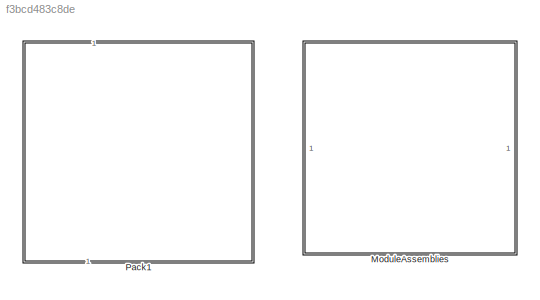
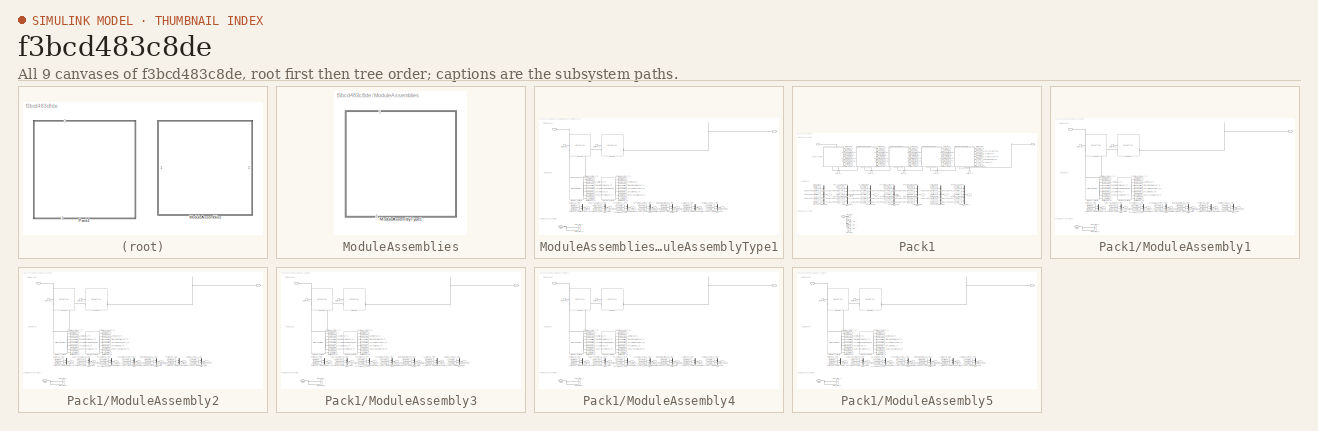
[diagram: thumbnail index - all 9 canvases of the model, root first then tree order]
MODEL slx_f3bcd483c8de
KIND library
CONFIG AbsTol = auto
CONFIG EnableMultiTasking = off
CONFIG FixedStep = auto
CONFIG MaxStep = auto
CONFIG MinStep = auto
CONFIG RelTol = 1e-3
CONFIG SampleTimeConstraint = Unconstrained
CONFIG SolverName = VariableStepAuto
CONFIG StartTime = 0.0
CONFIG StopTime = 10.0
BLOCK [SubSystem] ModuleAssemblies
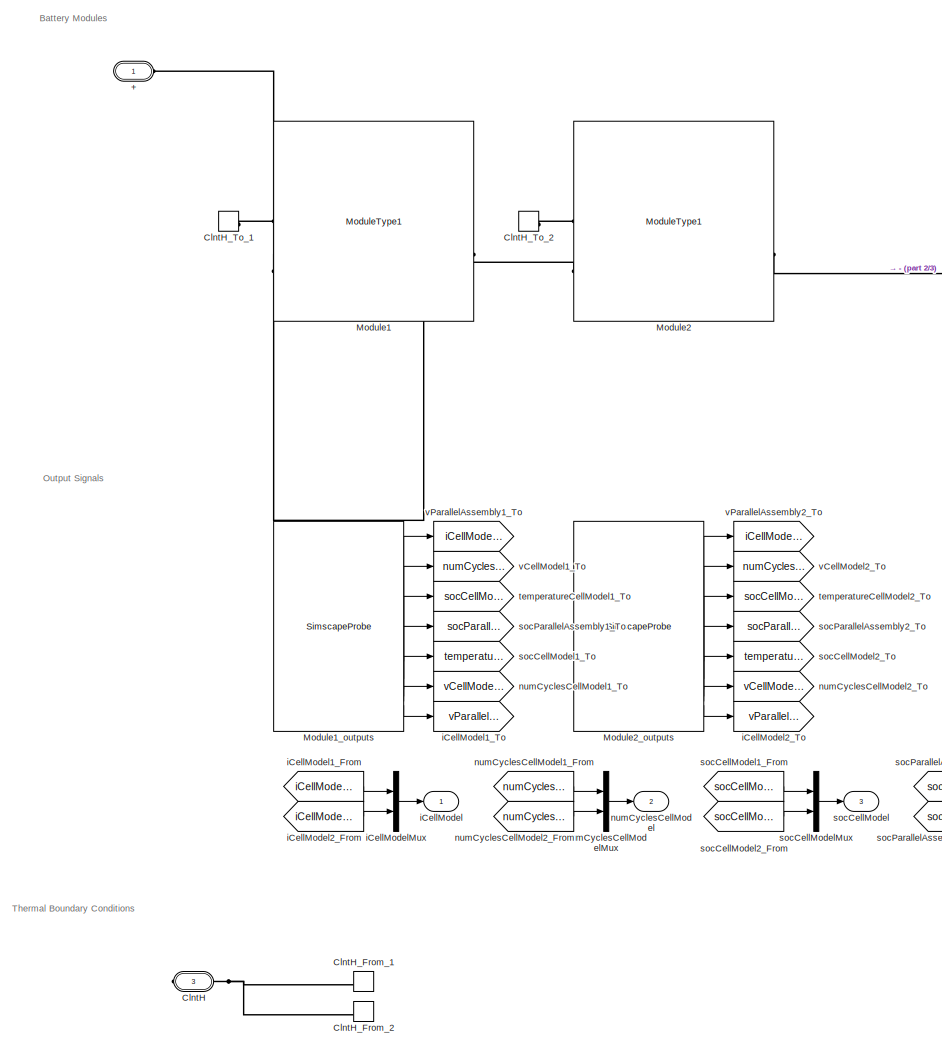
[diagram: ModuleAssemblies/ModuleAssemblyType1 - part 1/3, left side, full height]
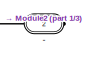
[diagram: ModuleAssemblies/ModuleAssemblyType1 - part 2/3, top right region]
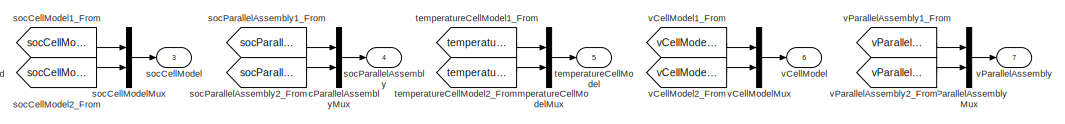
[diagram: ModuleAssemblies/ModuleAssemblyType1 - part 3/3, bottom center region]
BLOCK [SubSystem] ModuleAssemblies/ModuleAssemblyType1
  CopyFcn = set_param(gcb, 'LinkStatus', 'breakWithoutHierarchy')
  PortSchema = {"entries":[{"content":{"sides":[{"content":{"connectorIds":["LConn1"]},"type":"ConnectorPlacement.EquallySpacedRectSide","uuid":"7b46babc-8b83-451b-8519-1d7c62ae3771"},{"content":{"connectorIds":["RConn1","RConn2"],"side":"RIGHT"},"type":"ConnectorPlacement.EquallySpacedRectSide","uuid":"75c1bf7b-5e52-4279-86bf-85530d236c02"},{"content":{"connectorIds":[],"side":"TOP"},"type":"ConnectorPlacement....<+446ch>  <repeated x6 — deduplicated; at blocks: ModuleAssemblyType1, ModuleAssembly1, ModuleAssembly2, ModuleAssembly3, ModuleAssembly4, ModuleAssembly5>
BLOCK [PMIOPort] ModuleAssemblies/ModuleAssemblyType1/+
  Side = Left
BLOCK [PMIOPort] ModuleAssemblies/ModuleAssemblyType1/-
  Port = 2
  Side = Right
BLOCK [PMIOPort] ModuleAssemblies/ModuleAssemblyType1/ClntH
  Port = 3
  Side = Right
BLOCK [ConnectionLabel] ModuleAssemblies/ModuleAssemblyType1/ClntH_From_1
  Label = clntH_1
BLOCK [ConnectionLabel] ModuleAssemblies/ModuleAssemblyType1/ClntH_From_2
  Label = clntH_2
BLOCK [ConnectionLabel] ModuleAssemblies/ModuleAssemblyType1/ClntH_To_1
  Label = clntH_1
BLOCK [ConnectionLabel] ModuleAssemblies/ModuleAssemblyType1/ClntH_To_2
  Label = clntH_2
BLOCK [Reference] ModuleAssemblies/ModuleAssemblyType1/Module1  REF=batt_packBTMSExampleLib_lib/Modules/ModuleType1
  SourceBlock = batt_packBTMSExampleLib_lib/Modules/ModuleType1
  SourceType = ModuleType1
BLOCK [SimscapeProbe] ModuleAssemblies/ModuleAssemblyType1/Module1_outputs
  BoundBlock = 3
  Variables = {iCellModel, numCyclesCellModel, socCellModel, socParallelAssembly, temperatureCellModel, vCellModel, vParallelAssembly}
BLOCK [Reference] ModuleAssemblies/ModuleAssemblyType1/Module2  REF=batt_packBTMSExampleLib_lib/Modules/ModuleType1
  SourceBlock = batt_packBTMSExampleLib_lib/Modules/ModuleType1
  SourceType = ModuleType1
BLOCK [SimscapeProbe] ModuleAssemblies/ModuleAssemblyType1/Module2_outputs
  BoundBlock = 4
  Variables = {iCellModel, numCyclesCellModel, socCellModel, socParallelAssembly, temperatureCellModel, vCellModel, vParallelAssembly}
BLOCK [Outport] ModuleAssemblies/ModuleAssemblyType1/iCellModel
BLOCK [From] ModuleAssemblies/ModuleAssemblyType1/iCellModel1_From
  GotoTag = iCellModel1
BLOCK [Goto] ModuleAssemblies/ModuleAssemblyType1/iCellModel1_To
  GotoTag = vParallelAssembly1
BLOCK [From] ModuleAssemblies/ModuleAssemblyType1/iCellModel2_From
  GotoTag = iCellModel2
BLOCK [Goto] ModuleAssemblies/ModuleAssemblyType1/iCellModel2_To
  GotoTag = vParallelAssembly2
BLOCK [Mux] ModuleAssemblies/ModuleAssemblyType1/iCellModelMux
  DisplayOption = bar
  Inputs = 2
BLOCK [Outport] ModuleAssemblies/ModuleAssemblyType1/numCyclesCellModel
  Port = 2
BLOCK [From] ModuleAssemblies/ModuleAssemblyType1/numCyclesCellModel1_From
  GotoTag = numCyclesCellModel1
BLOCK [Goto] ModuleAssemblies/ModuleAssemblyType1/numCyclesCellModel1_To
  GotoTag = vCellModel1
BLOCK [From] ModuleAssemblies/ModuleAssemblyType1/numCyclesCellModel2_From
  GotoTag = numCyclesCellModel2
BLOCK [Goto] ModuleAssemblies/ModuleAssemblyType1/numCyclesCellModel2_To
  GotoTag = vCellModel2
BLOCK [Mux] ModuleAssemblies/ModuleAssemblyType1/numCyclesCellModelMux
  DisplayOption = bar
  Inputs = 2
BLOCK [Outport] ModuleAssemblies/ModuleAssemblyType1/socCellModel
  Port = 3
BLOCK [From] ModuleAssemblies/ModuleAssemblyType1/socCellModel1_From
  GotoTag = socCellModel1
BLOCK [Goto] ModuleAssemblies/ModuleAssemblyType1/socCellModel1_To
  GotoTag = temperatureCellModel1
BLOCK [From] ModuleAssemblies/ModuleAssemblyType1/socCellModel2_From
  GotoTag = socCellModel2
BLOCK [Goto] ModuleAssemblies/ModuleAssemblyType1/socCellModel2_To
  GotoTag = temperatureCellModel2
BLOCK [Mux] ModuleAssemblies/ModuleAssemblyType1/socCellModelMux
  DisplayOption = bar
  Inputs = 2
BLOCK [Outport] ModuleAssemblies/ModuleAssemblyType1/socParallelAssembly
  Port = 4
BLOCK [From] ModuleAssemblies/ModuleAssemblyType1/socParallelAssembly1_From
  GotoTag = socParallelAssembly1
BLOCK [Goto] ModuleAssemblies/ModuleAssemblyType1/socParallelAssembly1_To
  GotoTag = socParallelAssembly1
BLOCK [From] ModuleAssemblies/ModuleAssemblyType1/socParallelAssembly2_From
  GotoTag = socParallelAssembly2
BLOCK [Goto] ModuleAssemblies/ModuleAssemblyType1/socParallelAssembly2_To
  GotoTag = socParallelAssembly2
BLOCK [Mux] ModuleAssemblies/ModuleAssemblyType1/socParallelAssemblyMux
  DisplayOption = bar
  Inputs = 2
BLOCK [Outport] ModuleAssemblies/ModuleAssemblyType1/temperatureCellModel
  Port = 5
BLOCK [From] ModuleAssemblies/ModuleAssemblyType1/temperatureCellModel1_From
  GotoTag = temperatureCellModel1
BLOCK [Goto] ModuleAssemblies/ModuleAssemblyType1/temperatureCellModel1_To
  GotoTag = socCellModel1
BLOCK [From] ModuleAssemblies/ModuleAssemblyType1/temperatureCellModel2_From
  GotoTag = temperatureCellModel2
BLOCK [Goto] ModuleAssemblies/ModuleAssemblyType1/temperatureCellModel2_To
  GotoTag = socCellModel2
BLOCK [Mux] ModuleAssemblies/ModuleAssemblyType1/temperatureCellModelMux
  DisplayOption = bar
  Inputs = 2
BLOCK [Outport] ModuleAssemblies/ModuleAssemblyType1/vCellModel
  Port = 6
BLOCK [From] ModuleAssemblies/ModuleAssemblyType1/vCellModel1_From
  GotoTag = vCellModel1
BLOCK [Goto] ModuleAssemblies/ModuleAssemblyType1/vCellModel1_To
  GotoTag = numCyclesCellModel1
BLOCK [From] ModuleAssemblies/ModuleAssemblyType1/vCellModel2_From
  GotoTag = vCellModel2
BLOCK [Goto] ModuleAssemblies/ModuleAssemblyType1/vCellModel2_To
  GotoTag = numCyclesCellModel2
BLOCK [Mux] ModuleAssemblies/ModuleAssemblyType1/vCellModelMux
  DisplayOption = bar
  Inputs = 2
BLOCK [Outport] ModuleAssemblies/ModuleAssemblyType1/vParallelAssembly
  Port = 7
BLOCK [From] ModuleAssemblies/ModuleAssemblyType1/vParallelAssembly1_From
  GotoTag = vParallelAssembly1
BLOCK [Goto] ModuleAssemblies/ModuleAssemblyType1/vParallelAssembly1_To
  GotoTag = iCellModel1
BLOCK [From] ModuleAssemblies/ModuleAssemblyType1/vParallelAssembly2_From
  GotoTag = vParallelAssembly2
BLOCK [Goto] ModuleAssemblies/ModuleAssemblyType1/vParallelAssembly2_To
  GotoTag = iCellModel2
BLOCK [Mux] ModuleAssemblies/ModuleAssemblyType1/vParallelAssemblyMux
  DisplayOption = bar
  Inputs = 2
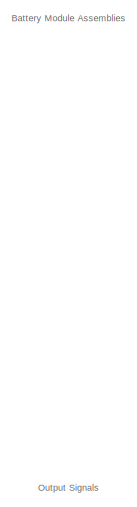
[diagram: Pack1 - part 1/5, top left region]
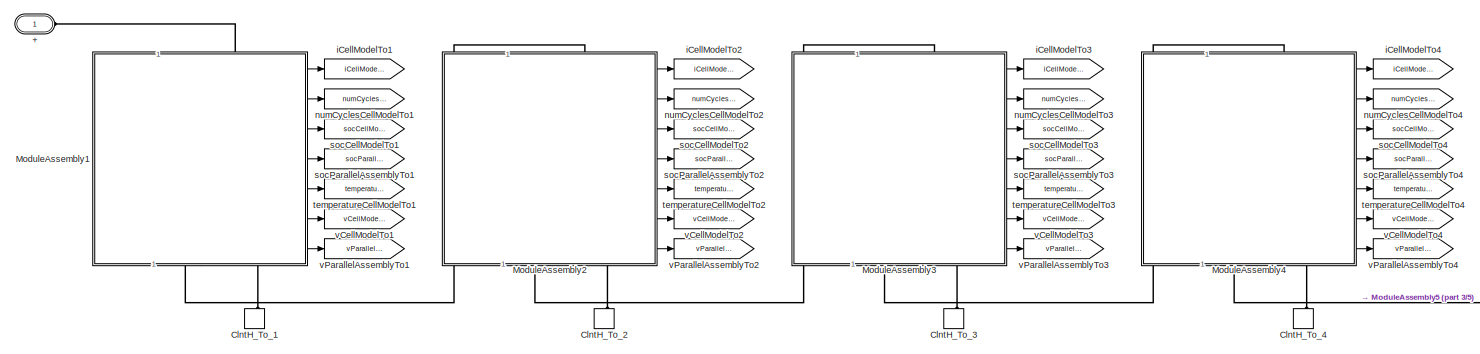
[diagram: Pack1 - part 2/5, top center region]
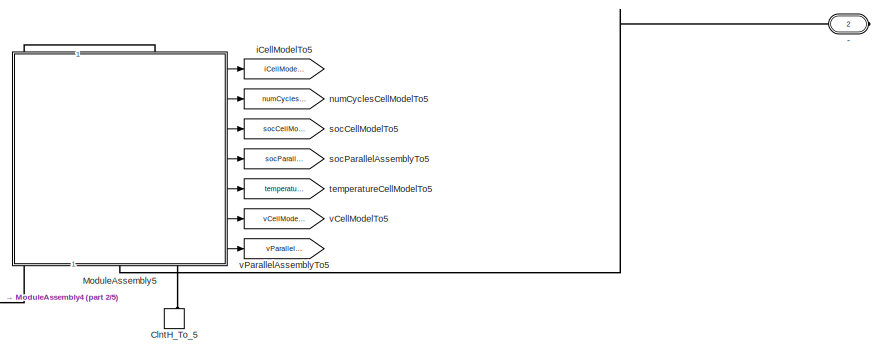
[diagram: Pack1 - part 3/5, top right region]
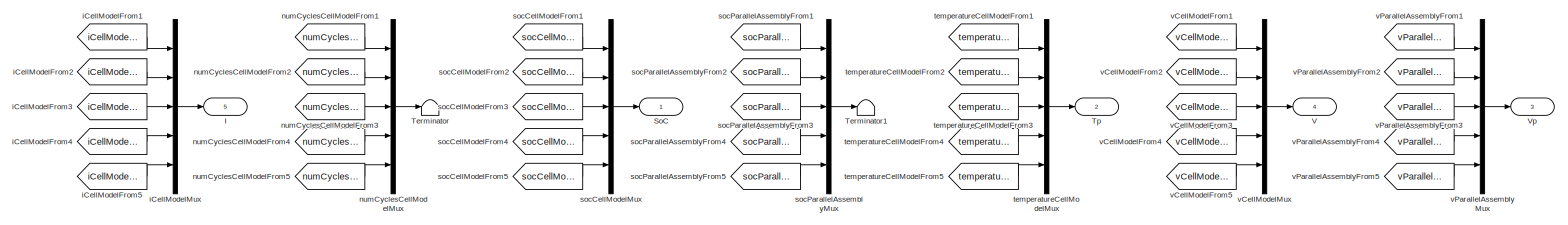
[diagram: Pack1 - part 4/5, central region]
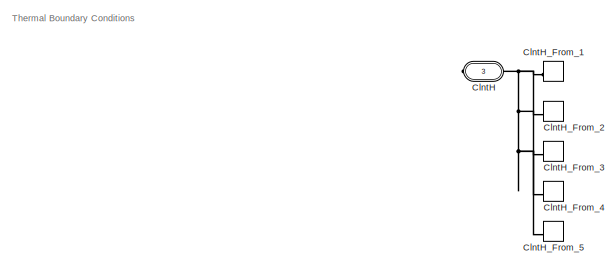
[diagram: Pack1 - part 5/5, bottom left region]
BLOCK [SubSystem] Pack1
  CopyFcn = set_param(gcb, 'LinkStatus', 'breakWithoutHierarchy')
  PortSchema = {"entries":[{"content":{"sides":[{"content":{"connectorIds":["LConn1"]},"type":"ConnectorPlacement.EquallySpacedRectSide","uuid":"7b46babc-8b83-451b-8519-1d7c62ae3771"},{"content":{"connectorIds":["RConn1","RConn2"],"side":"RIGHT"},"type":"ConnectorPlacement.EquallySpacedRectSide","uuid":"75c1bf7b-5e52-4279-86bf-85530d236c02"},{"content":{"connectorIds":[],"side":"TOP"},"type":"ConnectorPlacement....<+432ch>
BLOCK [PMIOPort] Pack1/+
  Side = Left
BLOCK [PMIOPort] Pack1/-
  Port = 2
  Side = Right
BLOCK [PMIOPort] Pack1/ClntH
  ConnectionType = Connection: foundation.thermal.thermal
  Port = 3
  Side = Right
BLOCK [ConnectionLabel] Pack1/ClntH_From_1
  Label = clntH_1
BLOCK [ConnectionLabel] Pack1/ClntH_From_2
  Label = clntH_2
BLOCK [ConnectionLabel] Pack1/ClntH_From_3
  Label = clntH_3
BLOCK [ConnectionLabel] Pack1/ClntH_From_4
  Label = clntH_4
BLOCK [ConnectionLabel] Pack1/ClntH_From_5
  Label = clntH_5
BLOCK [ConnectionLabel] Pack1/ClntH_To_1
  Label = clntH_1
  NameLocation = right
BLOCK [ConnectionLabel] Pack1/ClntH_To_2
  Label = clntH_2
  NameLocation = right
BLOCK [ConnectionLabel] Pack1/ClntH_To_3
  Label = clntH_3
  NameLocation = right
BLOCK [ConnectionLabel] Pack1/ClntH_To_4
  Label = clntH_4
  NameLocation = right
BLOCK [ConnectionLabel] Pack1/ClntH_To_5
  Label = clntH_5
  NameLocation = right
BLOCK [Outport] Pack1/I
  Port = 5
BLOCK [SubSystem] Pack1/ModuleAssembly1
  CopyFcn = set_param(gcb, 'LinkStatus', 'breakWithoutHierarchy')
BLOCK [PMIOPort] Pack1/ModuleAssembly1/+
  Side = Left
BLOCK [PMIOPort] Pack1/ModuleAssembly1/-
  Port = 2
  Side = Right
BLOCK [PMIOPort] Pack1/ModuleAssembly1/ClntH
  Port = 3
  Side = Right
BLOCK [ConnectionLabel] Pack1/ModuleAssembly1/ClntH_From_1
  Label = clntH_1
BLOCK [ConnectionLabel] Pack1/ModuleAssembly1/ClntH_From_2
  Label = clntH_2
BLOCK [ConnectionLabel] Pack1/ModuleAssembly1/ClntH_To_1
  Label = clntH_1
BLOCK [ConnectionLabel] Pack1/ModuleAssembly1/ClntH_To_2
  Label = clntH_2
BLOCK [Reference] Pack1/ModuleAssembly1/Module1  REF=batt_packBTMSExampleLib_lib/Modules/ModuleType1
  SourceBlock = batt_packBTMSExampleLib_lib/Modules/ModuleType1
  SourceType = ModuleType1
BLOCK [SimscapeProbe] Pack1/ModuleAssembly1/Module1_outputs
  BoundBlock = 65
  Variables = {iCellModel, numCyclesCellModel, socCellModel, socParallelAssembly, temperatureCellModel, vCellModel, vParallelAssembly}
BLOCK [Reference] Pack1/ModuleAssembly1/Module2  REF=batt_packBTMSExampleLib_lib/Modules/ModuleType1
  SourceBlock = batt_packBTMSExampleLib_lib/Modules/ModuleType1
  SourceType = ModuleType1
BLOCK [SimscapeProbe] Pack1/ModuleAssembly1/Module2_outputs
  BoundBlock = 67
  Variables = {iCellModel, numCyclesCellModel, socCellModel, socParallelAssembly, temperatureCellModel, vCellModel, vParallelAssembly}
BLOCK [Outport] Pack1/ModuleAssembly1/iCellModel
BLOCK [From] Pack1/ModuleAssembly1/iCellModel1_From
  GotoTag = iCellModel1
BLOCK [Goto] Pack1/ModuleAssembly1/iCellModel1_To
  GotoTag = vParallelAssembly1
BLOCK [From] Pack1/ModuleAssembly1/iCellModel2_From
  GotoTag = iCellModel2
BLOCK [Goto] Pack1/ModuleAssembly1/iCellModel2_To
  GotoTag = vParallelAssembly2
BLOCK [Mux] Pack1/ModuleAssembly1/iCellModelMux
  DisplayOption = bar
  Inputs = 2
BLOCK [Outport] Pack1/ModuleAssembly1/numCyclesCellModel
  Port = 2
BLOCK [From] Pack1/ModuleAssembly1/numCyclesCellModel1_From
  GotoTag = numCyclesCellModel1
BLOCK [Goto] Pack1/ModuleAssembly1/numCyclesCellModel1_To
  GotoTag = vCellModel1
BLOCK [From] Pack1/ModuleAssembly1/numCyclesCellModel2_From
  GotoTag = numCyclesCellModel2
BLOCK [Goto] Pack1/ModuleAssembly1/numCyclesCellModel2_To
  GotoTag = vCellModel2
BLOCK [Mux] Pack1/ModuleAssembly1/numCyclesCellModelMux
  DisplayOption = bar
  Inputs = 2
BLOCK [Outport] Pack1/ModuleAssembly1/socCellModel
  Port = 3
BLOCK [From] Pack1/ModuleAssembly1/socCellModel1_From
  GotoTag = socCellModel1
BLOCK [Goto] Pack1/ModuleAssembly1/socCellModel1_To
  GotoTag = temperatureCellModel1
BLOCK [From] Pack1/ModuleAssembly1/socCellModel2_From
  GotoTag = socCellModel2
BLOCK [Goto] Pack1/ModuleAssembly1/socCellModel2_To
  GotoTag = temperatureCellModel2
BLOCK [Mux] Pack1/ModuleAssembly1/socCellModelMux
  DisplayOption = bar
  Inputs = 2
BLOCK [Outport] Pack1/ModuleAssembly1/socParallelAssembly
  Port = 4
BLOCK [From] Pack1/ModuleAssembly1/socParallelAssembly1_From
  GotoTag = socParallelAssembly1
BLOCK [Goto] Pack1/ModuleAssembly1/socParallelAssembly1_To
  GotoTag = socParallelAssembly1
BLOCK [From] Pack1/ModuleAssembly1/socParallelAssembly2_From
  GotoTag = socParallelAssembly2
BLOCK [Goto] Pack1/ModuleAssembly1/socParallelAssembly2_To
  GotoTag = socParallelAssembly2
BLOCK [Mux] Pack1/ModuleAssembly1/socParallelAssemblyMux
  DisplayOption = bar
  Inputs = 2
BLOCK [Outport] Pack1/ModuleAssembly1/temperatureCellModel
  Port = 5
BLOCK [From] Pack1/ModuleAssembly1/temperatureCellModel1_From
  GotoTag = temperatureCellModel1
BLOCK [Goto] Pack1/ModuleAssembly1/temperatureCellModel1_To
  GotoTag = socCellModel1
BLOCK [From] Pack1/ModuleAssembly1/temperatureCellModel2_From
  GotoTag = temperatureCellModel2
BLOCK [Goto] Pack1/ModuleAssembly1/temperatureCellModel2_To
  GotoTag = socCellModel2
BLOCK [Mux] Pack1/ModuleAssembly1/temperatureCellModelMux
  DisplayOption = bar
  Inputs = 2
BLOCK [Outport] Pack1/ModuleAssembly1/vCellModel
  Port = 6
BLOCK [From] Pack1/ModuleAssembly1/vCellModel1_From
  GotoTag = vCellModel1
BLOCK [Goto] Pack1/ModuleAssembly1/vCellModel1_To
  GotoTag = numCyclesCellModel1
BLOCK [From] Pack1/ModuleAssembly1/vCellModel2_From
  GotoTag = vCellModel2
BLOCK [Goto] Pack1/ModuleAssembly1/vCellModel2_To
  GotoTag = numCyclesCellModel2
BLOCK [Mux] Pack1/ModuleAssembly1/vCellModelMux
  DisplayOption = bar
  Inputs = 2
BLOCK [Outport] Pack1/ModuleAssembly1/vParallelAssembly
  Port = 7
BLOCK [From] Pack1/ModuleAssembly1/vParallelAssembly1_From
  GotoTag = vParallelAssembly1
BLOCK [Goto] Pack1/ModuleAssembly1/vParallelAssembly1_To
  GotoTag = iCellModel1
BLOCK [From] Pack1/ModuleAssembly1/vParallelAssembly2_From
  GotoTag = vParallelAssembly2
BLOCK [Goto] Pack1/ModuleAssembly1/vParallelAssembly2_To
  GotoTag = iCellModel2
BLOCK [Mux] Pack1/ModuleAssembly1/vParallelAssemblyMux
  DisplayOption = bar
  Inputs = 2
BLOCK [SubSystem] Pack1/ModuleAssembly2
  CopyFcn = set_param(gcb, 'LinkStatus', 'breakWithoutHierarchy')
BLOCK [PMIOPort] Pack1/ModuleAssembly2/+
  Side = Left
BLOCK [PMIOPort] Pack1/ModuleAssembly2/-
  Port = 2
  Side = Right
BLOCK [PMIOPort] Pack1/ModuleAssembly2/ClntH
  Port = 3
  Side = Right
BLOCK [ConnectionLabel] Pack1/ModuleAssembly2/ClntH_From_1
  Label = clntH_1
BLOCK [ConnectionLabel] Pack1/ModuleAssembly2/ClntH_From_2
  Label = clntH_2
BLOCK [ConnectionLabel] Pack1/ModuleAssembly2/ClntH_To_1
  Label = clntH_1
BLOCK [ConnectionLabel] Pack1/ModuleAssembly2/ClntH_To_2
  Label = clntH_2
BLOCK [Reference] Pack1/ModuleAssembly2/Module1  REF=batt_packBTMSExampleLib_lib/Modules/ModuleType1
  SourceBlock = batt_packBTMSExampleLib_lib/Modules/ModuleType1
  SourceType = ModuleType1
BLOCK [SimscapeProbe] Pack1/ModuleAssembly2/Module1_outputs
  BoundBlock = 122
  Variables = {iCellModel, numCyclesCellModel, socCellModel, socParallelAssembly, temperatureCellModel, vCellModel, vParallelAssembly}
BLOCK [Reference] Pack1/ModuleAssembly2/Module2  REF=batt_packBTMSExampleLib_lib/Modules/ModuleType1
  SourceBlock = batt_packBTMSExampleLib_lib/Modules/ModuleType1
  SourceType = ModuleType1
BLOCK [SimscapeProbe] Pack1/ModuleAssembly2/Module2_outputs
  BoundBlock = 124
  Variables = {iCellModel, numCyclesCellModel, socCellModel, socParallelAssembly, temperatureCellModel, vCellModel, vParallelAssembly}
BLOCK [Outport] Pack1/ModuleAssembly2/iCellModel
BLOCK [From] Pack1/ModuleAssembly2/iCellModel1_From
  GotoTag = iCellModel1
BLOCK [Goto] Pack1/ModuleAssembly2/iCellModel1_To
  GotoTag = vParallelAssembly1
BLOCK [From] Pack1/ModuleAssembly2/iCellModel2_From
  GotoTag = iCellModel2
BLOCK [Goto] Pack1/ModuleAssembly2/iCellModel2_To
  GotoTag = vParallelAssembly2
BLOCK [Mux] Pack1/ModuleAssembly2/iCellModelMux
  DisplayOption = bar
  Inputs = 2
BLOCK [Outport] Pack1/ModuleAssembly2/numCyclesCellModel
  Port = 2
BLOCK [From] Pack1/ModuleAssembly2/numCyclesCellModel1_From
  GotoTag = numCyclesCellModel1
BLOCK [Goto] Pack1/ModuleAssembly2/numCyclesCellModel1_To
  GotoTag = vCellModel1
BLOCK [From] Pack1/ModuleAssembly2/numCyclesCellModel2_From
  GotoTag = numCyclesCellModel2
BLOCK [Goto] Pack1/ModuleAssembly2/numCyclesCellModel2_To
  GotoTag = vCellModel2
BLOCK [Mux] Pack1/ModuleAssembly2/numCyclesCellModelMux
  DisplayOption = bar
  Inputs = 2
BLOCK [Outport] Pack1/ModuleAssembly2/socCellModel
  Port = 3
BLOCK [From] Pack1/ModuleAssembly2/socCellModel1_From
  GotoTag = socCellModel1
BLOCK [Goto] Pack1/ModuleAssembly2/socCellModel1_To
  GotoTag = temperatureCellModel1
BLOCK [From] Pack1/ModuleAssembly2/socCellModel2_From
  GotoTag = socCellModel2
BLOCK [Goto] Pack1/ModuleAssembly2/socCellModel2_To
  GotoTag = temperatureCellModel2
BLOCK [Mux] Pack1/ModuleAssembly2/socCellModelMux
  DisplayOption = bar
  Inputs = 2
BLOCK [Outport] Pack1/ModuleAssembly2/socParallelAssembly
  Port = 4
BLOCK [From] Pack1/ModuleAssembly2/socParallelAssembly1_From
  GotoTag = socParallelAssembly1
BLOCK [Goto] Pack1/ModuleAssembly2/socParallelAssembly1_To
  GotoTag = socParallelAssembly1
BLOCK [From] Pack1/ModuleAssembly2/socParallelAssembly2_From
  GotoTag = socParallelAssembly2
BLOCK [Goto] Pack1/ModuleAssembly2/socParallelAssembly2_To
  GotoTag = socParallelAssembly2
BLOCK [Mux] Pack1/ModuleAssembly2/socParallelAssemblyMux
  DisplayOption = bar
  Inputs = 2
BLOCK [Outport] Pack1/ModuleAssembly2/temperatureCellModel
  Port = 5
BLOCK [From] Pack1/ModuleAssembly2/temperatureCellModel1_From
  GotoTag = temperatureCellModel1
BLOCK [Goto] Pack1/ModuleAssembly2/temperatureCellModel1_To
  GotoTag = socCellModel1
BLOCK [From] Pack1/ModuleAssembly2/temperatureCellModel2_From
  GotoTag = temperatureCellModel2
BLOCK [Goto] Pack1/ModuleAssembly2/temperatureCellModel2_To
  GotoTag = socCellModel2
BLOCK [Mux] Pack1/ModuleAssembly2/temperatureCellModelMux
  DisplayOption = bar
  Inputs = 2
BLOCK [Outport] Pack1/ModuleAssembly2/vCellModel
  Port = 6
BLOCK [From] Pack1/ModuleAssembly2/vCellModel1_From
  GotoTag = vCellModel1
BLOCK [Goto] Pack1/ModuleAssembly2/vCellModel1_To
  GotoTag = numCyclesCellModel1
BLOCK [From] Pack1/ModuleAssembly2/vCellModel2_From
  GotoTag = vCellModel2
BLOCK [Goto] Pack1/ModuleAssembly2/vCellModel2_To
  GotoTag = numCyclesCellModel2
BLOCK [Mux] Pack1/ModuleAssembly2/vCellModelMux
  DisplayOption = bar
  Inputs = 2
BLOCK [Outport] Pack1/ModuleAssembly2/vParallelAssembly
  Port = 7
BLOCK [From] Pack1/ModuleAssembly2/vParallelAssembly1_From
  GotoTag = vParallelAssembly1
BLOCK [Goto] Pack1/ModuleAssembly2/vParallelAssembly1_To
  GotoTag = iCellModel1
BLOCK [From] Pack1/ModuleAssembly2/vParallelAssembly2_From
  GotoTag = vParallelAssembly2
BLOCK [Goto] Pack1/ModuleAssembly2/vParallelAssembly2_To
  GotoTag = iCellModel2
BLOCK [Mux] Pack1/ModuleAssembly2/vParallelAssemblyMux
  DisplayOption = bar
  Inputs = 2
BLOCK [SubSystem] Pack1/ModuleAssembly3
  CopyFcn = set_param(gcb, 'LinkStatus', 'breakWithoutHierarchy')
BLOCK [PMIOPort] Pack1/ModuleAssembly3/+
  Side = Left
BLOCK [PMIOPort] Pack1/ModuleAssembly3/-
  Port = 2
  Side = Right
BLOCK [PMIOPort] Pack1/ModuleAssembly3/ClntH
  Port = 3
  Side = Right
BLOCK [ConnectionLabel] Pack1/ModuleAssembly3/ClntH_From_1
  Label = clntH_1
BLOCK [ConnectionLabel] Pack1/ModuleAssembly3/ClntH_From_2
  Label = clntH_2
BLOCK [ConnectionLabel] Pack1/ModuleAssembly3/ClntH_To_1
  Label = clntH_1
BLOCK [ConnectionLabel] Pack1/ModuleAssembly3/ClntH_To_2
  Label = clntH_2
BLOCK [Reference] Pack1/ModuleAssembly3/Module1  REF=batt_packBTMSExampleLib_lib/Modules/ModuleType1
  SourceBlock = batt_packBTMSExampleLib_lib/Modules/ModuleType1
  SourceType = ModuleType1
BLOCK [SimscapeProbe] Pack1/ModuleAssembly3/Module1_outputs
  BoundBlock = 179
  Variables = {iCellModel, numCyclesCellModel, socCellModel, socParallelAssembly, temperatureCellModel, vCellModel, vParallelAssembly}
BLOCK [Reference] Pack1/ModuleAssembly3/Module2  REF=batt_packBTMSExampleLib_lib/Modules/ModuleType1
  SourceBlock = batt_packBTMSExampleLib_lib/Modules/ModuleType1
  SourceType = ModuleType1
BLOCK [SimscapeProbe] Pack1/ModuleAssembly3/Module2_outputs
  BoundBlock = 181
  Variables = {iCellModel, numCyclesCellModel, socCellModel, socParallelAssembly, temperatureCellModel, vCellModel, vParallelAssembly}
BLOCK [Outport] Pack1/ModuleAssembly3/iCellModel
BLOCK [From] Pack1/ModuleAssembly3/iCellModel1_From
  GotoTag = iCellModel1
BLOCK [Goto] Pack1/ModuleAssembly3/iCellModel1_To
  GotoTag = vParallelAssembly1
BLOCK [From] Pack1/ModuleAssembly3/iCellModel2_From
  GotoTag = iCellModel2
BLOCK [Goto] Pack1/ModuleAssembly3/iCellModel2_To
  GotoTag = vParallelAssembly2
BLOCK [Mux] Pack1/ModuleAssembly3/iCellModelMux
  DisplayOption = bar
  Inputs = 2
BLOCK [Outport] Pack1/ModuleAssembly3/numCyclesCellModel
  Port = 2
BLOCK [From] Pack1/ModuleAssembly3/numCyclesCellModel1_From
  GotoTag = numCyclesCellModel1
BLOCK [Goto] Pack1/ModuleAssembly3/numCyclesCellModel1_To
  GotoTag = vCellModel1
BLOCK [From] Pack1/ModuleAssembly3/numCyclesCellModel2_From
  GotoTag = numCyclesCellModel2
BLOCK [Goto] Pack1/ModuleAssembly3/numCyclesCellModel2_To
  GotoTag = vCellModel2
BLOCK [Mux] Pack1/ModuleAssembly3/numCyclesCellModelMux
  DisplayOption = bar
  Inputs = 2
BLOCK [Outport] Pack1/ModuleAssembly3/socCellModel
  Port = 3
BLOCK [From] Pack1/ModuleAssembly3/socCellModel1_From
  GotoTag = socCellModel1
BLOCK [Goto] Pack1/ModuleAssembly3/socCellModel1_To
  GotoTag = temperatureCellModel1
BLOCK [From] Pack1/ModuleAssembly3/socCellModel2_From
  GotoTag = socCellModel2
BLOCK [Goto] Pack1/ModuleAssembly3/socCellModel2_To
  GotoTag = temperatureCellModel2
BLOCK [Mux] Pack1/ModuleAssembly3/socCellModelMux
  DisplayOption = bar
  Inputs = 2
BLOCK [Outport] Pack1/ModuleAssembly3/socParallelAssembly
  Port = 4
BLOCK [From] Pack1/ModuleAssembly3/socParallelAssembly1_From
  GotoTag = socParallelAssembly1
BLOCK [Goto] Pack1/ModuleAssembly3/socParallelAssembly1_To
  GotoTag = socParallelAssembly1
BLOCK [From] Pack1/ModuleAssembly3/socParallelAssembly2_From
  GotoTag = socParallelAssembly2
BLOCK [Goto] Pack1/ModuleAssembly3/socParallelAssembly2_To
  GotoTag = socParallelAssembly2
BLOCK [Mux] Pack1/ModuleAssembly3/socParallelAssemblyMux
  DisplayOption = bar
  Inputs = 2
BLOCK [Outport] Pack1/ModuleAssembly3/temperatureCellModel
  Port = 5
BLOCK [From] Pack1/ModuleAssembly3/temperatureCellModel1_From
  GotoTag = temperatureCellModel1
BLOCK [Goto] Pack1/ModuleAssembly3/temperatureCellModel1_To
  GotoTag = socCellModel1
BLOCK [From] Pack1/ModuleAssembly3/temperatureCellModel2_From
  GotoTag = temperatureCellModel2
BLOCK [Goto] Pack1/ModuleAssembly3/temperatureCellModel2_To
  GotoTag = socCellModel2
BLOCK [Mux] Pack1/ModuleAssembly3/temperatureCellModelMux
  DisplayOption = bar
  Inputs = 2
BLOCK [Outport] Pack1/ModuleAssembly3/vCellModel
  Port = 6
BLOCK [From] Pack1/ModuleAssembly3/vCellModel1_From
  GotoTag = vCellModel1
BLOCK [Goto] Pack1/ModuleAssembly3/vCellModel1_To
  GotoTag = numCyclesCellModel1
BLOCK [From] Pack1/ModuleAssembly3/vCellModel2_From
  GotoTag = vCellModel2
BLOCK [Goto] Pack1/ModuleAssembly3/vCellModel2_To
  GotoTag = numCyclesCellModel2
BLOCK [Mux] Pack1/ModuleAssembly3/vCellModelMux
  DisplayOption = bar
  Inputs = 2
BLOCK [Outport] Pack1/ModuleAssembly3/vParallelAssembly
  Port = 7
BLOCK [From] Pack1/ModuleAssembly3/vParallelAssembly1_From
  GotoTag = vParallelAssembly1
BLOCK [Goto] Pack1/ModuleAssembly3/vParallelAssembly1_To
  GotoTag = iCellModel1
BLOCK [From] Pack1/ModuleAssembly3/vParallelAssembly2_From
  GotoTag = vParallelAssembly2
BLOCK [Goto] Pack1/ModuleAssembly3/vParallelAssembly2_To
  GotoTag = iCellModel2
BLOCK [Mux] Pack1/ModuleAssembly3/vParallelAssemblyMux
  DisplayOption = bar
  Inputs = 2
BLOCK [SubSystem] Pack1/ModuleAssembly4
  CopyFcn = set_param(gcb, 'LinkStatus', 'breakWithoutHierarchy')
BLOCK [PMIOPort] Pack1/ModuleAssembly4/+
  Side = Left
BLOCK [PMIOPort] Pack1/ModuleAssembly4/-
  Port = 2
  Side = Right
BLOCK [PMIOPort] Pack1/ModuleAssembly4/ClntH
  Port = 3
  Side = Right
BLOCK [ConnectionLabel] Pack1/ModuleAssembly4/ClntH_From_1
  Label = clntH_1
BLOCK [ConnectionLabel] Pack1/ModuleAssembly4/ClntH_From_2
  Label = clntH_2
BLOCK [ConnectionLabel] Pack1/ModuleAssembly4/ClntH_To_1
  Label = clntH_1
BLOCK [ConnectionLabel] Pack1/ModuleAssembly4/ClntH_To_2
  Label = clntH_2
BLOCK [Reference] Pack1/ModuleAssembly4/Module1  REF=batt_packBTMSExampleLib_lib/Modules/ModuleType1
  SourceBlock = batt_packBTMSExampleLib_lib/Modules/ModuleType1
  SourceType = ModuleType1
BLOCK [SimscapeProbe] Pack1/ModuleAssembly4/Module1_outputs
  BoundBlock = 236
  Variables = {iCellModel, numCyclesCellModel, socCellModel, socParallelAssembly, temperatureCellModel, vCellModel, vParallelAssembly}
BLOCK [Reference] Pack1/ModuleAssembly4/Module2  REF=batt_packBTMSExampleLib_lib/Modules/ModuleType1
  SourceBlock = batt_packBTMSExampleLib_lib/Modules/ModuleType1
  SourceType = ModuleType1
BLOCK [SimscapeProbe] Pack1/ModuleAssembly4/Module2_outputs
  BoundBlock = 238
  Variables = {iCellModel, numCyclesCellModel, socCellModel, socParallelAssembly, temperatureCellModel, vCellModel, vParallelAssembly}
BLOCK [Outport] Pack1/ModuleAssembly4/iCellModel
BLOCK [From] Pack1/ModuleAssembly4/iCellModel1_From
  GotoTag = iCellModel1
BLOCK [Goto] Pack1/ModuleAssembly4/iCellModel1_To
  GotoTag = vParallelAssembly1
BLOCK [From] Pack1/ModuleAssembly4/iCellModel2_From
  GotoTag = iCellModel2
BLOCK [Goto] Pack1/ModuleAssembly4/iCellModel2_To
  GotoTag = vParallelAssembly2
BLOCK [Mux] Pack1/ModuleAssembly4/iCellModelMux
  DisplayOption = bar
  Inputs = 2
BLOCK [Outport] Pack1/ModuleAssembly4/numCyclesCellModel
  Port = 2
BLOCK [From] Pack1/ModuleAssembly4/numCyclesCellModel1_From
  GotoTag = numCyclesCellModel1
BLOCK [Goto] Pack1/ModuleAssembly4/numCyclesCellModel1_To
  GotoTag = vCellModel1
BLOCK [From] Pack1/ModuleAssembly4/numCyclesCellModel2_From
  GotoTag = numCyclesCellModel2
BLOCK [Goto] Pack1/ModuleAssembly4/numCyclesCellModel2_To
  GotoTag = vCellModel2
BLOCK [Mux] Pack1/ModuleAssembly4/numCyclesCellModelMux
  DisplayOption = bar
  Inputs = 2
BLOCK [Outport] Pack1/ModuleAssembly4/socCellModel
  Port = 3
BLOCK [From] Pack1/ModuleAssembly4/socCellModel1_From
  GotoTag = socCellModel1
BLOCK [Goto] Pack1/ModuleAssembly4/socCellModel1_To
  GotoTag = temperatureCellModel1
BLOCK [From] Pack1/ModuleAssembly4/socCellModel2_From
  GotoTag = socCellModel2
BLOCK [Goto] Pack1/ModuleAssembly4/socCellModel2_To
  GotoTag = temperatureCellModel2
BLOCK [Mux] Pack1/ModuleAssembly4/socCellModelMux
  DisplayOption = bar
  Inputs = 2
BLOCK [Outport] Pack1/ModuleAssembly4/socParallelAssembly
  Port = 4
BLOCK [From] Pack1/ModuleAssembly4/socParallelAssembly1_From
  GotoTag = socParallelAssembly1
BLOCK [Goto] Pack1/ModuleAssembly4/socParallelAssembly1_To
  GotoTag = socParallelAssembly1
BLOCK [From] Pack1/ModuleAssembly4/socParallelAssembly2_From
  GotoTag = socParallelAssembly2
BLOCK [Goto] Pack1/ModuleAssembly4/socParallelAssembly2_To
  GotoTag = socParallelAssembly2
BLOCK [Mux] Pack1/ModuleAssembly4/socParallelAssemblyMux
  DisplayOption = bar
  Inputs = 2
BLOCK [Outport] Pack1/ModuleAssembly4/temperatureCellModel
  Port = 5
BLOCK [From] Pack1/ModuleAssembly4/temperatureCellModel1_From
  GotoTag = temperatureCellModel1
BLOCK [Goto] Pack1/ModuleAssembly4/temperatureCellModel1_To
  GotoTag = socCellModel1
BLOCK [From] Pack1/ModuleAssembly4/temperatureCellModel2_From
  GotoTag = temperatureCellModel2
BLOCK [Goto] Pack1/ModuleAssembly4/temperatureCellModel2_To
  GotoTag = socCellModel2
BLOCK [Mux] Pack1/ModuleAssembly4/temperatureCellModelMux
  DisplayOption = bar
  Inputs = 2
BLOCK [Outport] Pack1/ModuleAssembly4/vCellModel
  Port = 6
BLOCK [From] Pack1/ModuleAssembly4/vCellModel1_From
  GotoTag = vCellModel1
BLOCK [Goto] Pack1/ModuleAssembly4/vCellModel1_To
  GotoTag = numCyclesCellModel1
BLOCK [From] Pack1/ModuleAssembly4/vCellModel2_From
  GotoTag = vCellModel2
BLOCK [Goto] Pack1/ModuleAssembly4/vCellModel2_To
  GotoTag = numCyclesCellModel2
BLOCK [Mux] Pack1/ModuleAssembly4/vCellModelMux
  DisplayOption = bar
  Inputs = 2
BLOCK [Outport] Pack1/ModuleAssembly4/vParallelAssembly
  Port = 7
BLOCK [From] Pack1/ModuleAssembly4/vParallelAssembly1_From
  GotoTag = vParallelAssembly1
BLOCK [Goto] Pack1/ModuleAssembly4/vParallelAssembly1_To
  GotoTag = iCellModel1
BLOCK [From] Pack1/ModuleAssembly4/vParallelAssembly2_From
  GotoTag = vParallelAssembly2
BLOCK [Goto] Pack1/ModuleAssembly4/vParallelAssembly2_To
  GotoTag = iCellModel2
BLOCK [Mux] Pack1/ModuleAssembly4/vParallelAssemblyMux
  DisplayOption = bar
  Inputs = 2
BLOCK [SubSystem] Pack1/ModuleAssembly5
  CopyFcn = set_param(gcb, 'LinkStatus', 'breakWithoutHierarchy')
BLOCK [PMIOPort] Pack1/ModuleAssembly5/+
  Side = Left
BLOCK [PMIOPort] Pack1/ModuleAssembly5/-
  Port = 2
  Side = Right
BLOCK [PMIOPort] Pack1/ModuleAssembly5/ClntH
  Port = 3
  Side = Right
BLOCK [ConnectionLabel] Pack1/ModuleAssembly5/ClntH_From_1
  Label = clntH_1
BLOCK [ConnectionLabel] Pack1/ModuleAssembly5/ClntH_From_2
  Label = clntH_2
BLOCK [ConnectionLabel] Pack1/ModuleAssembly5/ClntH_To_1
  Label = clntH_1
BLOCK [ConnectionLabel] Pack1/ModuleAssembly5/ClntH_To_2
  Label = clntH_2
BLOCK [Reference] Pack1/ModuleAssembly5/Module1  REF=batt_packBTMSExampleLib_lib/Modules/ModuleType1
  SourceBlock = batt_packBTMSExampleLib_lib/Modules/ModuleType1
  SourceType = ModuleType1
BLOCK [SimscapeProbe] Pack1/ModuleAssembly5/Module1_outputs
  BoundBlock = 293
  Variables = {iCellModel, numCyclesCellModel, socCellModel, socParallelAssembly, temperatureCellModel, vCellModel, vParallelAssembly}
BLOCK [Reference] Pack1/ModuleAssembly5/Module2  REF=batt_packBTMSExampleLib_lib/Modules/ModuleType1
  SourceBlock = batt_packBTMSExampleLib_lib/Modules/ModuleType1
  SourceType = ModuleType1
BLOCK [SimscapeProbe] Pack1/ModuleAssembly5/Module2_outputs
  BoundBlock = 295
  Variables = {iCellModel, numCyclesCellModel, socCellModel, socParallelAssembly, temperatureCellModel, vCellModel, vParallelAssembly}
BLOCK [Outport] Pack1/ModuleAssembly5/iCellModel
BLOCK [From] Pack1/ModuleAssembly5/iCellModel1_From
  GotoTag = iCellModel1
BLOCK [Goto] Pack1/ModuleAssembly5/iCellModel1_To
  GotoTag = vParallelAssembly1
BLOCK [From] Pack1/ModuleAssembly5/iCellModel2_From
  GotoTag = iCellModel2
BLOCK [Goto] Pack1/ModuleAssembly5/iCellModel2_To
  GotoTag = vParallelAssembly2
BLOCK [Mux] Pack1/ModuleAssembly5/iCellModelMux
  DisplayOption = bar
  Inputs = 2
BLOCK [Outport] Pack1/ModuleAssembly5/numCyclesCellModel
  Port = 2
BLOCK [From] Pack1/ModuleAssembly5/numCyclesCellModel1_From
  GotoTag = numCyclesCellModel1
BLOCK [Goto] Pack1/ModuleAssembly5/numCyclesCellModel1_To
  GotoTag = vCellModel1
BLOCK [From] Pack1/ModuleAssembly5/numCyclesCellModel2_From
  GotoTag = numCyclesCellModel2
BLOCK [Goto] Pack1/ModuleAssembly5/numCyclesCellModel2_To
  GotoTag = vCellModel2
BLOCK [Mux] Pack1/ModuleAssembly5/numCyclesCellModelMux
  DisplayOption = bar
  Inputs = 2
BLOCK [Outport] Pack1/ModuleAssembly5/socCellModel
  Port = 3
BLOCK [From] Pack1/ModuleAssembly5/socCellModel1_From
  GotoTag = socCellModel1
BLOCK [Goto] Pack1/ModuleAssembly5/socCellModel1_To
  GotoTag = temperatureCellModel1
BLOCK [From] Pack1/ModuleAssembly5/socCellModel2_From
  GotoTag = socCellModel2
BLOCK [Goto] Pack1/ModuleAssembly5/socCellModel2_To
  GotoTag = temperatureCellModel2
BLOCK [Mux] Pack1/ModuleAssembly5/socCellModelMux
  DisplayOption = bar
  Inputs = 2
BLOCK [Outport] Pack1/ModuleAssembly5/socParallelAssembly
  Port = 4
BLOCK [From] Pack1/ModuleAssembly5/socParallelAssembly1_From
  GotoTag = socParallelAssembly1
BLOCK [Goto] Pack1/ModuleAssembly5/socParallelAssembly1_To
  GotoTag = socParallelAssembly1
BLOCK [From] Pack1/ModuleAssembly5/socParallelAssembly2_From
  GotoTag = socParallelAssembly2
BLOCK [Goto] Pack1/ModuleAssembly5/socParallelAssembly2_To
  GotoTag = socParallelAssembly2
BLOCK [Mux] Pack1/ModuleAssembly5/socParallelAssemblyMux
  DisplayOption = bar
  Inputs = 2
BLOCK [Outport] Pack1/ModuleAssembly5/temperatureCellModel
  Port = 5
BLOCK [From] Pack1/ModuleAssembly5/temperatureCellModel1_From
  GotoTag = temperatureCellModel1
BLOCK [Goto] Pack1/ModuleAssembly5/temperatureCellModel1_To
  GotoTag = socCellModel1
BLOCK [From] Pack1/ModuleAssembly5/temperatureCellModel2_From
  GotoTag = temperatureCellModel2
BLOCK [Goto] Pack1/ModuleAssembly5/temperatureCellModel2_To
  GotoTag = socCellModel2
BLOCK [Mux] Pack1/ModuleAssembly5/temperatureCellModelMux
  DisplayOption = bar
  Inputs = 2
BLOCK [Outport] Pack1/ModuleAssembly5/vCellModel
  Port = 6
BLOCK [From] Pack1/ModuleAssembly5/vCellModel1_From
  GotoTag = vCellModel1
BLOCK [Goto] Pack1/ModuleAssembly5/vCellModel1_To
  GotoTag = numCyclesCellModel1
BLOCK [From] Pack1/ModuleAssembly5/vCellModel2_From
  GotoTag = vCellModel2
BLOCK [Goto] Pack1/ModuleAssembly5/vCellModel2_To
  GotoTag = numCyclesCellModel2
BLOCK [Mux] Pack1/ModuleAssembly5/vCellModelMux
  DisplayOption = bar
  Inputs = 2
BLOCK [Outport] Pack1/ModuleAssembly5/vParallelAssembly
  Port = 7
BLOCK [From] Pack1/ModuleAssembly5/vParallelAssembly1_From
  GotoTag = vParallelAssembly1
BLOCK [Goto] Pack1/ModuleAssembly5/vParallelAssembly1_To
  GotoTag = iCellModel1
BLOCK [From] Pack1/ModuleAssembly5/vParallelAssembly2_From
  GotoTag = vParallelAssembly2
BLOCK [Goto] Pack1/ModuleAssembly5/vParallelAssembly2_To
  GotoTag = iCellModel2
BLOCK [Mux] Pack1/ModuleAssembly5/vParallelAssemblyMux
  DisplayOption = bar
  Inputs = 2
BLOCK [Outport] Pack1/SoC
BLOCK [Terminator] Pack1/Terminator
BLOCK [Terminator] Pack1/Terminator1
BLOCK [Outport] Pack1/Tp
  Port = 2
BLOCK [Outport] Pack1/V
  Port = 4
BLOCK [Outport] Pack1/Vp
  Port = 3
BLOCK [From] Pack1/iCellModelFrom1
  GotoTag = iCellModel1
BLOCK [From] Pack1/iCellModelFrom2
  GotoTag = iCellModel2
BLOCK [From] Pack1/iCellModelFrom3
  GotoTag = iCellModel3
BLOCK [From] Pack1/iCellModelFrom4
  GotoTag = iCellModel4
BLOCK [From] Pack1/iCellModelFrom5
  GotoTag = iCellModel5
BLOCK [Mux] Pack1/iCellModelMux
  DisplayOption = bar
  Inputs = 5
BLOCK [Goto] Pack1/iCellModelTo1
  GotoTag = iCellModel1
BLOCK [Goto] Pack1/iCellModelTo2
  GotoTag = iCellModel2
BLOCK [Goto] Pack1/iCellModelTo3
  GotoTag = iCellModel3
BLOCK [Goto] Pack1/iCellModelTo4
  GotoTag = iCellModel4
BLOCK [Goto] Pack1/iCellModelTo5
  GotoTag = iCellModel5
BLOCK [From] Pack1/numCyclesCellModelFrom1
  GotoTag = numCyclesCellModel1
BLOCK [From] Pack1/numCyclesCellModelFrom2
  GotoTag = numCyclesCellModel2
BLOCK [From] Pack1/numCyclesCellModelFrom3
  GotoTag = numCyclesCellModel3
BLOCK [From] Pack1/numCyclesCellModelFrom4
  GotoTag = numCyclesCellModel4
BLOCK [From] Pack1/numCyclesCellModelFrom5
  GotoTag = numCyclesCellModel5
BLOCK [Mux] Pack1/numCyclesCellModelMux
  DisplayOption = bar
  Inputs = 5
BLOCK [Goto] Pack1/numCyclesCellModelTo1
  GotoTag = numCyclesCellModel1
BLOCK [Goto] Pack1/numCyclesCellModelTo2
  GotoTag = numCyclesCellModel2
BLOCK [Goto] Pack1/numCyclesCellModelTo3
  GotoTag = numCyclesCellModel3
BLOCK [Goto] Pack1/numCyclesCellModelTo4
  GotoTag = numCyclesCellModel4
BLOCK [Goto] Pack1/numCyclesCellModelTo5
  GotoTag = numCyclesCellModel5
BLOCK [From] Pack1/socCellModelFrom1
  GotoTag = socCellModel1
BLOCK [From] Pack1/socCellModelFrom2
  GotoTag = socCellModel2
BLOCK [From] Pack1/socCellModelFrom3
  GotoTag = socCellModel3
BLOCK [From] Pack1/socCellModelFrom4
  GotoTag = socCellModel4
BLOCK [From] Pack1/socCellModelFrom5
  GotoTag = socCellModel5
BLOCK [Mux] Pack1/socCellModelMux
  DisplayOption = bar
  Inputs = 5
BLOCK [Goto] Pack1/socCellModelTo1
  GotoTag = socCellModel1
BLOCK [Goto] Pack1/socCellModelTo2
  GotoTag = socCellModel2
BLOCK [Goto] Pack1/socCellModelTo3
  GotoTag = socCellModel3
BLOCK [Goto] Pack1/socCellModelTo4
  GotoTag = socCellModel4
BLOCK [Goto] Pack1/socCellModelTo5
  GotoTag = socCellModel5
BLOCK [From] Pack1/socParallelAssemblyFrom1
  GotoTag = socParallelAssembly1
BLOCK [From] Pack1/socParallelAssemblyFrom2
  GotoTag = socParallelAssembly2
BLOCK [From] Pack1/socParallelAssemblyFrom3
  GotoTag = socParallelAssembly3
BLOCK [From] Pack1/socParallelAssemblyFrom4
  GotoTag = socParallelAssembly4
BLOCK [From] Pack1/socParallelAssemblyFrom5
  GotoTag = socParallelAssembly5
BLOCK [Mux] Pack1/socParallelAssemblyMux
  DisplayOption = bar
  Inputs = 5
BLOCK [Goto] Pack1/socParallelAssemblyTo1
  GotoTag = socParallelAssembly1
BLOCK [Goto] Pack1/socParallelAssemblyTo2
  GotoTag = socParallelAssembly2
BLOCK [Goto] Pack1/socParallelAssemblyTo3
  GotoTag = socParallelAssembly3
BLOCK [Goto] Pack1/socParallelAssemblyTo4
  GotoTag = socParallelAssembly4
BLOCK [Goto] Pack1/socParallelAssemblyTo5
  GotoTag = socParallelAssembly5
BLOCK [From] Pack1/temperatureCellModelFrom1
  GotoTag = temperatureCellModel1
BLOCK [From] Pack1/temperatureCellModelFrom2
  GotoTag = temperatureCellModel2
BLOCK [From] Pack1/temperatureCellModelFrom3
  GotoTag = temperatureCellModel3
BLOCK [From] Pack1/temperatureCellModelFrom4
  GotoTag = temperatureCellModel4
BLOCK [From] Pack1/temperatureCellModelFrom5
  GotoTag = temperatureCellModel5
BLOCK [Mux] Pack1/temperatureCellModelMux
  DisplayOption = bar
  Inputs = 5
BLOCK [Goto] Pack1/temperatureCellModelTo1
  GotoTag = temperatureCellModel1
BLOCK [Goto] Pack1/temperatureCellModelTo2
  GotoTag = temperatureCellModel2
BLOCK [Goto] Pack1/temperatureCellModelTo3
  GotoTag = temperatureCellModel3
BLOCK [Goto] Pack1/temperatureCellModelTo4
  GotoTag = temperatureCellModel4
BLOCK [Goto] Pack1/temperatureCellModelTo5
  GotoTag = temperatureCellModel5
BLOCK [From] Pack1/vCellModelFrom1
  GotoTag = vCellModel1
BLOCK [From] Pack1/vCellModelFrom2
  GotoTag = vCellModel2
BLOCK [From] Pack1/vCellModelFrom3
  GotoTag = vCellModel3
BLOCK [From] Pack1/vCellModelFrom4
  GotoTag = vCellModel4
BLOCK [From] Pack1/vCellModelFrom5
  GotoTag = vCellModel5
BLOCK [Mux] Pack1/vCellModelMux
  DisplayOption = bar
  Inputs = 5
BLOCK [Goto] Pack1/vCellModelTo1
  GotoTag = vCellModel1
BLOCK [Goto] Pack1/vCellModelTo2
  GotoTag = vCellModel2
BLOCK [Goto] Pack1/vCellModelTo3
  GotoTag = vCellModel3
BLOCK [Goto] Pack1/vCellModelTo4
  GotoTag = vCellModel4
BLOCK [Goto] Pack1/vCellModelTo5
  GotoTag = vCellModel5
BLOCK [From] Pack1/vParallelAssemblyFrom1
  GotoTag = vParallelAssembly1
BLOCK [From] Pack1/vParallelAssemblyFrom2
  GotoTag = vParallelAssembly2
BLOCK [From] Pack1/vParallelAssemblyFrom3
  GotoTag = vParallelAssembly3
BLOCK [From] Pack1/vParallelAssemblyFrom4
  GotoTag = vParallelAssembly4
BLOCK [From] Pack1/vParallelAssemblyFrom5
  GotoTag = vParallelAssembly5
BLOCK [Mux] Pack1/vParallelAssemblyMux
  DisplayOption = bar
  Inputs = 5
BLOCK [Goto] Pack1/vParallelAssemblyTo1
  GotoTag = vParallelAssembly1
BLOCK [Goto] Pack1/vParallelAssemblyTo2
  GotoTag = vParallelAssembly2
BLOCK [Goto] Pack1/vParallelAssemblyTo3
  GotoTag = vParallelAssembly3
BLOCK [Goto] Pack1/vParallelAssemblyTo4
  GotoTag = vParallelAssembly4
BLOCK [Goto] Pack1/vParallelAssemblyTo5
  GotoTag = vParallelAssembly5
ANNOTATION ModuleAssemblies/ModuleAssemblyType1: Battery Modules
ANNOTATION ModuleAssemblies/ModuleAssemblyType1: Output Signals
ANNOTATION ModuleAssemblies/ModuleAssemblyType1: Thermal Boundary Conditions
ANNOTATION Pack1: Battery Module Assemblies
ANNOTATION Pack1: Output Signals
ANNOTATION Pack1: Thermal Boundary Conditions
ANNOTATION Pack1/ModuleAssembly1: Battery Modules
ANNOTATION Pack1/ModuleAssembly1: Output Signals
ANNOTATION Pack1/ModuleAssembly1: Thermal Boundary Conditions
ANNOTATION Pack1/ModuleAssembly2: Battery Modules
ANNOTATION Pack1/ModuleAssembly2: Output Signals
ANNOTATION Pack1/ModuleAssembly2: Thermal Boundary Conditions
ANNOTATION Pack1/ModuleAssembly3: Battery Modules
ANNOTATION Pack1/ModuleAssembly3: Output Signals
ANNOTATION Pack1/ModuleAssembly3: Thermal Boundary Conditions
ANNOTATION Pack1/ModuleAssembly4: Battery Modules
ANNOTATION Pack1/ModuleAssembly4: Output Signals
ANNOTATION Pack1/ModuleAssembly4: Thermal Boundary Conditions
ANNOTATION Pack1/ModuleAssembly5: Battery Modules
ANNOTATION Pack1/ModuleAssembly5: Output Signals
ANNOTATION Pack1/ModuleAssembly5: Thermal Boundary Conditions
LINE ModuleAssemblies/ModuleAssemblyType1/Module1_outputs:1 -> ModuleAssemblies/ModuleAssemblyType1/vParallelAssembly1_To:1
LINE ModuleAssemblies/ModuleAssemblyType1/Module1_outputs:2 -> ModuleAssemblies/ModuleAssemblyType1/vCellModel1_To:1
LINE ModuleAssemblies/ModuleAssemblyType1/Module1_outputs:3 -> ModuleAssemblies/ModuleAssemblyType1/temperatureCellModel1_To:1
LINE ModuleAssemblies/ModuleAssemblyType1/Module1_outputs:4 -> ModuleAssemblies/ModuleAssemblyType1/socParallelAssembly1_To:1
LINE ModuleAssemblies/ModuleAssemblyType1/Module1_outputs:5 -> ModuleAssemblies/ModuleAssemblyType1/socCellModel1_To:1
LINE ModuleAssemblies/ModuleAssemblyType1/Module1_outputs:6 -> ModuleAssemblies/ModuleAssemblyType1/numCyclesCellModel1_To:1
LINE ModuleAssemblies/ModuleAssemblyType1/Module1_outputs:7 -> ModuleAssemblies/ModuleAssemblyType1/iCellModel1_To:1
LINE ModuleAssemblies/ModuleAssemblyType1/Module2_outputs:1 -> ModuleAssemblies/ModuleAssemblyType1/vParallelAssembly2_To:1
LINE ModuleAssemblies/ModuleAssemblyType1/Module2_outputs:2 -> ModuleAssemblies/ModuleAssemblyType1/vCellModel2_To:1
LINE ModuleAssemblies/ModuleAssemblyType1/Module2_outputs:3 -> ModuleAssemblies/ModuleAssemblyType1/temperatureCellModel2_To:1
LINE ModuleAssemblies/ModuleAssemblyType1/Module2_outputs:4 -> ModuleAssemblies/ModuleAssemblyType1/socParallelAssembly2_To:1
LINE ModuleAssemblies/ModuleAssemblyType1/Module2_outputs:5 -> ModuleAssemblies/ModuleAssemblyType1/socCellModel2_To:1
LINE ModuleAssemblies/ModuleAssemblyType1/Module2_outputs:6 -> ModuleAssemblies/ModuleAssemblyType1/numCyclesCellModel2_To:1
LINE ModuleAssemblies/ModuleAssemblyType1/Module2_outputs:7 -> ModuleAssemblies/ModuleAssemblyType1/iCellModel2_To:1
LINE ModuleAssemblies/ModuleAssemblyType1/iCellModel1_From:1 -> ModuleAssemblies/ModuleAssemblyType1/iCellModelMux:1
LINE ModuleAssemblies/ModuleAssemblyType1/iCellModel2_From:1 -> ModuleAssemblies/ModuleAssemblyType1/iCellModelMux:2
LINE ModuleAssemblies/ModuleAssemblyType1/iCellModelMux:1 -> ModuleAssemblies/ModuleAssemblyType1/iCellModel:1
LINE ModuleAssemblies/ModuleAssemblyType1/numCyclesCellModel1_From:1 -> ModuleAssemblies/ModuleAssemblyType1/numCyclesCellModelMux:1
LINE ModuleAssemblies/ModuleAssemblyType1/numCyclesCellModel2_From:1 -> ModuleAssemblies/ModuleAssemblyType1/numCyclesCellModelMux:2
LINE ModuleAssemblies/ModuleAssemblyType1/numCyclesCellModelMux:1 -> ModuleAssemblies/ModuleAssemblyType1/numCyclesCellModel:1
LINE ModuleAssemblies/ModuleAssemblyType1/socCellModel1_From:1 -> ModuleAssemblies/ModuleAssemblyType1/socCellModelMux:1
LINE ModuleAssemblies/ModuleAssemblyType1/socCellModel2_From:1 -> ModuleAssemblies/ModuleAssemblyType1/socCellModelMux:2
LINE ModuleAssemblies/ModuleAssemblyType1/socCellModelMux:1 -> ModuleAssemblies/ModuleAssemblyType1/socCellModel:1
LINE ModuleAssemblies/ModuleAssemblyType1/socParallelAssembly1_From:1 -> ModuleAssemblies/ModuleAssemblyType1/socParallelAssemblyMux:1
LINE ModuleAssemblies/ModuleAssemblyType1/socParallelAssembly2_From:1 -> ModuleAssemblies/ModuleAssemblyType1/socParallelAssemblyMux:2
LINE ModuleAssemblies/ModuleAssemblyType1/socParallelAssemblyMux:1 -> ModuleAssemblies/ModuleAssemblyType1/socParallelAssembly:1
LINE ModuleAssemblies/ModuleAssemblyType1/temperatureCellModel1_From:1 -> ModuleAssemblies/ModuleAssemblyType1/temperatureCellModelMux:1
LINE ModuleAssemblies/ModuleAssemblyType1/temperatureCellModel2_From:1 -> ModuleAssemblies/ModuleAssemblyType1/temperatureCellModelMux:2
LINE ModuleAssemblies/ModuleAssemblyType1/temperatureCellModelMux:1 -> ModuleAssemblies/ModuleAssemblyType1/temperatureCellModel:1
LINE ModuleAssemblies/ModuleAssemblyType1/vCellModel1_From:1 -> ModuleAssemblies/ModuleAssemblyType1/vCellModelMux:1
LINE ModuleAssemblies/ModuleAssemblyType1/vCellModel2_From:1 -> ModuleAssemblies/ModuleAssemblyType1/vCellModelMux:2
LINE ModuleAssemblies/ModuleAssemblyType1/vCellModelMux:1 -> ModuleAssemblies/ModuleAssemblyType1/vCellModel:1
LINE ModuleAssemblies/ModuleAssemblyType1/vParallelAssembly1_From:1 -> ModuleAssemblies/ModuleAssemblyType1/vParallelAssemblyMux:1
LINE ModuleAssemblies/ModuleAssemblyType1/vParallelAssembly2_From:1 -> ModuleAssemblies/ModuleAssemblyType1/vParallelAssemblyMux:2
LINE ModuleAssemblies/ModuleAssemblyType1/vParallelAssemblyMux:1 -> ModuleAssemblies/ModuleAssemblyType1/vParallelAssembly:1
LINE Pack1/ModuleAssembly1/Module1_outputs:1 -> Pack1/ModuleAssembly1/vParallelAssembly1_To:1
LINE Pack1/ModuleAssembly1/Module1_outputs:2 -> Pack1/ModuleAssembly1/vCellModel1_To:1
LINE Pack1/ModuleAssembly1/Module1_outputs:3 -> Pack1/ModuleAssembly1/temperatureCellModel1_To:1
LINE Pack1/ModuleAssembly1/Module1_outputs:4 -> Pack1/ModuleAssembly1/socParallelAssembly1_To:1
LINE Pack1/ModuleAssembly1/Module1_outputs:5 -> Pack1/ModuleAssembly1/socCellModel1_To:1
LINE Pack1/ModuleAssembly1/Module1_outputs:6 -> Pack1/ModuleAssembly1/numCyclesCellModel1_To:1
LINE Pack1/ModuleAssembly1/Module1_outputs:7 -> Pack1/ModuleAssembly1/iCellModel1_To:1
LINE Pack1/ModuleAssembly1/Module2_outputs:1 -> Pack1/ModuleAssembly1/vParallelAssembly2_To:1
LINE Pack1/ModuleAssembly1/Module2_outputs:2 -> Pack1/ModuleAssembly1/vCellModel2_To:1
LINE Pack1/ModuleAssembly1/Module2_outputs:3 -> Pack1/ModuleAssembly1/temperatureCellModel2_To:1
LINE Pack1/ModuleAssembly1/Module2_outputs:4 -> Pack1/ModuleAssembly1/socParallelAssembly2_To:1
LINE Pack1/ModuleAssembly1/Module2_outputs:5 -> Pack1/ModuleAssembly1/socCellModel2_To:1
LINE Pack1/ModuleAssembly1/Module2_outputs:6 -> Pack1/ModuleAssembly1/numCyclesCellModel2_To:1
LINE Pack1/ModuleAssembly1/Module2_outputs:7 -> Pack1/ModuleAssembly1/iCellModel2_To:1
LINE Pack1/ModuleAssembly1/iCellModel1_From:1 -> Pack1/ModuleAssembly1/iCellModelMux:1
LINE Pack1/ModuleAssembly1/iCellModel2_From:1 -> Pack1/ModuleAssembly1/iCellModelMux:2
LINE Pack1/ModuleAssembly1/iCellModelMux:1 -> Pack1/ModuleAssembly1/iCellModel:1
LINE Pack1/ModuleAssembly1/numCyclesCellModel1_From:1 -> Pack1/ModuleAssembly1/numCyclesCellModelMux:1
LINE Pack1/ModuleAssembly1/numCyclesCellModel2_From:1 -> Pack1/ModuleAssembly1/numCyclesCellModelMux:2
LINE Pack1/ModuleAssembly1/numCyclesCellModelMux:1 -> Pack1/ModuleAssembly1/numCyclesCellModel:1
LINE Pack1/ModuleAssembly1/socCellModel1_From:1 -> Pack1/ModuleAssembly1/socCellModelMux:1
LINE Pack1/ModuleAssembly1/socCellModel2_From:1 -> Pack1/ModuleAssembly1/socCellModelMux:2
LINE Pack1/ModuleAssembly1/socCellModelMux:1 -> Pack1/ModuleAssembly1/socCellModel:1
LINE Pack1/ModuleAssembly1/socParallelAssembly1_From:1 -> Pack1/ModuleAssembly1/socParallelAssemblyMux:1
LINE Pack1/ModuleAssembly1/socParallelAssembly2_From:1 -> Pack1/ModuleAssembly1/socParallelAssemblyMux:2
LINE Pack1/ModuleAssembly1/socParallelAssemblyMux:1 -> Pack1/ModuleAssembly1/socParallelAssembly:1
LINE Pack1/ModuleAssembly1/temperatureCellModel1_From:1 -> Pack1/ModuleAssembly1/temperatureCellModelMux:1
LINE Pack1/ModuleAssembly1/temperatureCellModel2_From:1 -> Pack1/ModuleAssembly1/temperatureCellModelMux:2
LINE Pack1/ModuleAssembly1/temperatureCellModelMux:1 -> Pack1/ModuleAssembly1/temperatureCellModel:1
LINE Pack1/ModuleAssembly1/vCellModel1_From:1 -> Pack1/ModuleAssembly1/vCellModelMux:1
LINE Pack1/ModuleAssembly1/vCellModel2_From:1 -> Pack1/ModuleAssembly1/vCellModelMux:2
LINE Pack1/ModuleAssembly1/vCellModelMux:1 -> Pack1/ModuleAssembly1/vCellModel:1
LINE Pack1/ModuleAssembly1/vParallelAssembly1_From:1 -> Pack1/ModuleAssembly1/vParallelAssemblyMux:1
LINE Pack1/ModuleAssembly1/vParallelAssembly2_From:1 -> Pack1/ModuleAssembly1/vParallelAssemblyMux:2
LINE Pack1/ModuleAssembly1/vParallelAssemblyMux:1 -> Pack1/ModuleAssembly1/vParallelAssembly:1
LINE Pack1/ModuleAssembly1:1 -> Pack1/iCellModelTo1:1
LINE Pack1/ModuleAssembly1:2 -> Pack1/numCyclesCellModelTo1:1
LINE Pack1/ModuleAssembly1:3 -> Pack1/socCellModelTo1:1
LINE Pack1/ModuleAssembly1:4 -> Pack1/socParallelAssemblyTo1:1
LINE Pack1/ModuleAssembly1:5 -> Pack1/temperatureCellModelTo1:1
LINE Pack1/ModuleAssembly1:6 -> Pack1/vCellModelTo1:1
LINE Pack1/ModuleAssembly1:7 -> Pack1/vParallelAssemblyTo1:1
LINE Pack1/ModuleAssembly2/Module1_outputs:1 -> Pack1/ModuleAssembly2/vParallelAssembly1_To:1
LINE Pack1/ModuleAssembly2/Module1_outputs:2 -> Pack1/ModuleAssembly2/vCellModel1_To:1
LINE Pack1/ModuleAssembly2/Module1_outputs:3 -> Pack1/ModuleAssembly2/temperatureCellModel1_To:1
LINE Pack1/ModuleAssembly2/Module1_outputs:4 -> Pack1/ModuleAssembly2/socParallelAssembly1_To:1
LINE Pack1/ModuleAssembly2/Module1_outputs:5 -> Pack1/ModuleAssembly2/socCellModel1_To:1
LINE Pack1/ModuleAssembly2/Module1_outputs:6 -> Pack1/ModuleAssembly2/numCyclesCellModel1_To:1
LINE Pack1/ModuleAssembly2/Module1_outputs:7 -> Pack1/ModuleAssembly2/iCellModel1_To:1
LINE Pack1/ModuleAssembly2/Module2_outputs:1 -> Pack1/ModuleAssembly2/vParallelAssembly2_To:1
LINE Pack1/ModuleAssembly2/Module2_outputs:2 -> Pack1/ModuleAssembly2/vCellModel2_To:1
LINE Pack1/ModuleAssembly2/Module2_outputs:3 -> Pack1/ModuleAssembly2/temperatureCellModel2_To:1
LINE Pack1/ModuleAssembly2/Module2_outputs:4 -> Pack1/ModuleAssembly2/socParallelAssembly2_To:1
LINE Pack1/ModuleAssembly2/Module2_outputs:5 -> Pack1/ModuleAssembly2/socCellModel2_To:1
LINE Pack1/ModuleAssembly2/Module2_outputs:6 -> Pack1/ModuleAssembly2/numCyclesCellModel2_To:1
LINE Pack1/ModuleAssembly2/Module2_outputs:7 -> Pack1/ModuleAssembly2/iCellModel2_To:1
LINE Pack1/ModuleAssembly2/iCellModel1_From:1 -> Pack1/ModuleAssembly2/iCellModelMux:1
LINE Pack1/ModuleAssembly2/iCellModel2_From:1 -> Pack1/ModuleAssembly2/iCellModelMux:2
LINE Pack1/ModuleAssembly2/iCellModelMux:1 -> Pack1/ModuleAssembly2/iCellModel:1
LINE Pack1/ModuleAssembly2/numCyclesCellModel1_From:1 -> Pack1/ModuleAssembly2/numCyclesCellModelMux:1
LINE Pack1/ModuleAssembly2/numCyclesCellModel2_From:1 -> Pack1/ModuleAssembly2/numCyclesCellModelMux:2
LINE Pack1/ModuleAssembly2/numCyclesCellModelMux:1 -> Pack1/ModuleAssembly2/numCyclesCellModel:1
LINE Pack1/ModuleAssembly2/socCellModel1_From:1 -> Pack1/ModuleAssembly2/socCellModelMux:1
LINE Pack1/ModuleAssembly2/socCellModel2_From:1 -> Pack1/ModuleAssembly2/socCellModelMux:2
LINE Pack1/ModuleAssembly2/socCellModelMux:1 -> Pack1/ModuleAssembly2/socCellModel:1
LINE Pack1/ModuleAssembly2/socParallelAssembly1_From:1 -> Pack1/ModuleAssembly2/socParallelAssemblyMux:1
LINE Pack1/ModuleAssembly2/socParallelAssembly2_From:1 -> Pack1/ModuleAssembly2/socParallelAssemblyMux:2
LINE Pack1/ModuleAssembly2/socParallelAssemblyMux:1 -> Pack1/ModuleAssembly2/socParallelAssembly:1
LINE Pack1/ModuleAssembly2/temperatureCellModel1_From:1 -> Pack1/ModuleAssembly2/temperatureCellModelMux:1
LINE Pack1/ModuleAssembly2/temperatureCellModel2_From:1 -> Pack1/ModuleAssembly2/temperatureCellModelMux:2
LINE Pack1/ModuleAssembly2/temperatureCellModelMux:1 -> Pack1/ModuleAssembly2/temperatureCellModel:1
LINE Pack1/ModuleAssembly2/vCellModel1_From:1 -> Pack1/ModuleAssembly2/vCellModelMux:1
LINE Pack1/ModuleAssembly2/vCellModel2_From:1 -> Pack1/ModuleAssembly2/vCellModelMux:2
LINE Pack1/ModuleAssembly2/vCellModelMux:1 -> Pack1/ModuleAssembly2/vCellModel:1
LINE Pack1/ModuleAssembly2/vParallelAssembly1_From:1 -> Pack1/ModuleAssembly2/vParallelAssemblyMux:1
LINE Pack1/ModuleAssembly2/vParallelAssembly2_From:1 -> Pack1/ModuleAssembly2/vParallelAssemblyMux:2
LINE Pack1/ModuleAssembly2/vParallelAssemblyMux:1 -> Pack1/ModuleAssembly2/vParallelAssembly:1
LINE Pack1/ModuleAssembly2:1 -> Pack1/iCellModelTo2:1
LINE Pack1/ModuleAssembly2:2 -> Pack1/numCyclesCellModelTo2:1
LINE Pack1/ModuleAssembly2:3 -> Pack1/socCellModelTo2:1
LINE Pack1/ModuleAssembly2:4 -> Pack1/socParallelAssemblyTo2:1
LINE Pack1/ModuleAssembly2:5 -> Pack1/temperatureCellModelTo2:1
LINE Pack1/ModuleAssembly2:6 -> Pack1/vCellModelTo2:1
LINE Pack1/ModuleAssembly2:7 -> Pack1/vParallelAssemblyTo2:1
LINE Pack1/ModuleAssembly3/Module1_outputs:1 -> Pack1/ModuleAssembly3/vParallelAssembly1_To:1
LINE Pack1/ModuleAssembly3/Module1_outputs:2 -> Pack1/ModuleAssembly3/vCellModel1_To:1
LINE Pack1/ModuleAssembly3/Module1_outputs:3 -> Pack1/ModuleAssembly3/temperatureCellModel1_To:1
LINE Pack1/ModuleAssembly3/Module1_outputs:4 -> Pack1/ModuleAssembly3/socParallelAssembly1_To:1
LINE Pack1/ModuleAssembly3/Module1_outputs:5 -> Pack1/ModuleAssembly3/socCellModel1_To:1
LINE Pack1/ModuleAssembly3/Module1_outputs:6 -> Pack1/ModuleAssembly3/numCyclesCellModel1_To:1
LINE Pack1/ModuleAssembly3/Module1_outputs:7 -> Pack1/ModuleAssembly3/iCellModel1_To:1
LINE Pack1/ModuleAssembly3/Module2_outputs:1 -> Pack1/ModuleAssembly3/vParallelAssembly2_To:1
LINE Pack1/ModuleAssembly3/Module2_outputs:2 -> Pack1/ModuleAssembly3/vCellModel2_To:1
LINE Pack1/ModuleAssembly3/Module2_outputs:3 -> Pack1/ModuleAssembly3/temperatureCellModel2_To:1
LINE Pack1/ModuleAssembly3/Module2_outputs:4 -> Pack1/ModuleAssembly3/socParallelAssembly2_To:1
LINE Pack1/ModuleAssembly3/Module2_outputs:5 -> Pack1/ModuleAssembly3/socCellModel2_To:1
LINE Pack1/ModuleAssembly3/Module2_outputs:6 -> Pack1/ModuleAssembly3/numCyclesCellModel2_To:1
LINE Pack1/ModuleAssembly3/Module2_outputs:7 -> Pack1/ModuleAssembly3/iCellModel2_To:1
LINE Pack1/ModuleAssembly3/iCellModel1_From:1 -> Pack1/ModuleAssembly3/iCellModelMux:1
LINE Pack1/ModuleAssembly3/iCellModel2_From:1 -> Pack1/ModuleAssembly3/iCellModelMux:2
LINE Pack1/ModuleAssembly3/iCellModelMux:1 -> Pack1/ModuleAssembly3/iCellModel:1
LINE Pack1/ModuleAssembly3/numCyclesCellModel1_From:1 -> Pack1/ModuleAssembly3/numCyclesCellModelMux:1
LINE Pack1/ModuleAssembly3/numCyclesCellModel2_From:1 -> Pack1/ModuleAssembly3/numCyclesCellModelMux:2
LINE Pack1/ModuleAssembly3/numCyclesCellModelMux:1 -> Pack1/ModuleAssembly3/numCyclesCellModel:1
LINE Pack1/ModuleAssembly3/socCellModel1_From:1 -> Pack1/ModuleAssembly3/socCellModelMux:1
LINE Pack1/ModuleAssembly3/socCellModel2_From:1 -> Pack1/ModuleAssembly3/socCellModelMux:2
LINE Pack1/ModuleAssembly3/socCellModelMux:1 -> Pack1/ModuleAssembly3/socCellModel:1
LINE Pack1/ModuleAssembly3/socParallelAssembly1_From:1 -> Pack1/ModuleAssembly3/socParallelAssemblyMux:1
LINE Pack1/ModuleAssembly3/socParallelAssembly2_From:1 -> Pack1/ModuleAssembly3/socParallelAssemblyMux:2
LINE Pack1/ModuleAssembly3/socParallelAssemblyMux:1 -> Pack1/ModuleAssembly3/socParallelAssembly:1
LINE Pack1/ModuleAssembly3/temperatureCellModel1_From:1 -> Pack1/ModuleAssembly3/temperatureCellModelMux:1
LINE Pack1/ModuleAssembly3/temperatureCellModel2_From:1 -> Pack1/ModuleAssembly3/temperatureCellModelMux:2
LINE Pack1/ModuleAssembly3/temperatureCellModelMux:1 -> Pack1/ModuleAssembly3/temperatureCellModel:1
LINE Pack1/ModuleAssembly3/vCellModel1_From:1 -> Pack1/ModuleAssembly3/vCellModelMux:1
LINE Pack1/ModuleAssembly3/vCellModel2_From:1 -> Pack1/ModuleAssembly3/vCellModelMux:2
LINE Pack1/ModuleAssembly3/vCellModelMux:1 -> Pack1/ModuleAssembly3/vCellModel:1
LINE Pack1/ModuleAssembly3/vParallelAssembly1_From:1 -> Pack1/ModuleAssembly3/vParallelAssemblyMux:1
LINE Pack1/ModuleAssembly3/vParallelAssembly2_From:1 -> Pack1/ModuleAssembly3/vParallelAssemblyMux:2
LINE Pack1/ModuleAssembly3/vParallelAssemblyMux:1 -> Pack1/ModuleAssembly3/vParallelAssembly:1
LINE Pack1/ModuleAssembly3:1 -> Pack1/iCellModelTo3:1
LINE Pack1/ModuleAssembly3:2 -> Pack1/numCyclesCellModelTo3:1
LINE Pack1/ModuleAssembly3:3 -> Pack1/socCellModelTo3:1
LINE Pack1/ModuleAssembly3:4 -> Pack1/socParallelAssemblyTo3:1
LINE Pack1/ModuleAssembly3:5 -> Pack1/temperatureCellModelTo3:1
LINE Pack1/ModuleAssembly3:6 -> Pack1/vCellModelTo3:1
LINE Pack1/ModuleAssembly3:7 -> Pack1/vParallelAssemblyTo3:1
LINE Pack1/ModuleAssembly4/Module1_outputs:1 -> Pack1/ModuleAssembly4/vParallelAssembly1_To:1
LINE Pack1/ModuleAssembly4/Module1_outputs:2 -> Pack1/ModuleAssembly4/vCellModel1_To:1
LINE Pack1/ModuleAssembly4/Module1_outputs:3 -> Pack1/ModuleAssembly4/temperatureCellModel1_To:1
LINE Pack1/ModuleAssembly4/Module1_outputs:4 -> Pack1/ModuleAssembly4/socParallelAssembly1_To:1
LINE Pack1/ModuleAssembly4/Module1_outputs:5 -> Pack1/ModuleAssembly4/socCellModel1_To:1
LINE Pack1/ModuleAssembly4/Module1_outputs:6 -> Pack1/ModuleAssembly4/numCyclesCellModel1_To:1
LINE Pack1/ModuleAssembly4/Module1_outputs:7 -> Pack1/ModuleAssembly4/iCellModel1_To:1
LINE Pack1/ModuleAssembly4/Module2_outputs:1 -> Pack1/ModuleAssembly4/vParallelAssembly2_To:1
LINE Pack1/ModuleAssembly4/Module2_outputs:2 -> Pack1/ModuleAssembly4/vCellModel2_To:1
LINE Pack1/ModuleAssembly4/Module2_outputs:3 -> Pack1/ModuleAssembly4/temperatureCellModel2_To:1
LINE Pack1/ModuleAssembly4/Module2_outputs:4 -> Pack1/ModuleAssembly4/socParallelAssembly2_To:1
LINE Pack1/ModuleAssembly4/Module2_outputs:5 -> Pack1/ModuleAssembly4/socCellModel2_To:1
LINE Pack1/ModuleAssembly4/Module2_outputs:6 -> Pack1/ModuleAssembly4/numCyclesCellModel2_To:1
LINE Pack1/ModuleAssembly4/Module2_outputs:7 -> Pack1/ModuleAssembly4/iCellModel2_To:1
LINE Pack1/ModuleAssembly4/iCellModel1_From:1 -> Pack1/ModuleAssembly4/iCellModelMux:1
LINE Pack1/ModuleAssembly4/iCellModel2_From:1 -> Pack1/ModuleAssembly4/iCellModelMux:2
LINE Pack1/ModuleAssembly4/iCellModelMux:1 -> Pack1/ModuleAssembly4/iCellModel:1
LINE Pack1/ModuleAssembly4/numCyclesCellModel1_From:1 -> Pack1/ModuleAssembly4/numCyclesCellModelMux:1
LINE Pack1/ModuleAssembly4/numCyclesCellModel2_From:1 -> Pack1/ModuleAssembly4/numCyclesCellModelMux:2
LINE Pack1/ModuleAssembly4/numCyclesCellModelMux:1 -> Pack1/ModuleAssembly4/numCyclesCellModel:1
LINE Pack1/ModuleAssembly4/socCellModel1_From:1 -> Pack1/ModuleAssembly4/socCellModelMux:1
LINE Pack1/ModuleAssembly4/socCellModel2_From:1 -> Pack1/ModuleAssembly4/socCellModelMux:2
LINE Pack1/ModuleAssembly4/socCellModelMux:1 -> Pack1/ModuleAssembly4/socCellModel:1
LINE Pack1/ModuleAssembly4/socParallelAssembly1_From:1 -> Pack1/ModuleAssembly4/socParallelAssemblyMux:1
LINE Pack1/ModuleAssembly4/socParallelAssembly2_From:1 -> Pack1/ModuleAssembly4/socParallelAssemblyMux:2
LINE Pack1/ModuleAssembly4/socParallelAssemblyMux:1 -> Pack1/ModuleAssembly4/socParallelAssembly:1
LINE Pack1/ModuleAssembly4/temperatureCellModel1_From:1 -> Pack1/ModuleAssembly4/temperatureCellModelMux:1
LINE Pack1/ModuleAssembly4/temperatureCellModel2_From:1 -> Pack1/ModuleAssembly4/temperatureCellModelMux:2
LINE Pack1/ModuleAssembly4/temperatureCellModelMux:1 -> Pack1/ModuleAssembly4/temperatureCellModel:1
LINE Pack1/ModuleAssembly4/vCellModel1_From:1 -> Pack1/ModuleAssembly4/vCellModelMux:1
LINE Pack1/ModuleAssembly4/vCellModel2_From:1 -> Pack1/ModuleAssembly4/vCellModelMux:2
LINE Pack1/ModuleAssembly4/vCellModelMux:1 -> Pack1/ModuleAssembly4/vCellModel:1
LINE Pack1/ModuleAssembly4/vParallelAssembly1_From:1 -> Pack1/ModuleAssembly4/vParallelAssemblyMux:1
LINE Pack1/ModuleAssembly4/vParallelAssembly2_From:1 -> Pack1/ModuleAssembly4/vParallelAssemblyMux:2
LINE Pack1/ModuleAssembly4/vParallelAssemblyMux:1 -> Pack1/ModuleAssembly4/vParallelAssembly:1
LINE Pack1/ModuleAssembly4:1 -> Pack1/iCellModelTo4:1
LINE Pack1/ModuleAssembly4:2 -> Pack1/numCyclesCellModelTo4:1
LINE Pack1/ModuleAssembly4:3 -> Pack1/socCellModelTo4:1
LINE Pack1/ModuleAssembly4:4 -> Pack1/socParallelAssemblyTo4:1
LINE Pack1/ModuleAssembly4:5 -> Pack1/temperatureCellModelTo4:1
LINE Pack1/ModuleAssembly4:6 -> Pack1/vCellModelTo4:1
LINE Pack1/ModuleAssembly4:7 -> Pack1/vParallelAssemblyTo4:1
LINE Pack1/ModuleAssembly5/Module1_outputs:1 -> Pack1/ModuleAssembly5/vParallelAssembly1_To:1
LINE Pack1/ModuleAssembly5/Module1_outputs:2 -> Pack1/ModuleAssembly5/vCellModel1_To:1
LINE Pack1/ModuleAssembly5/Module1_outputs:3 -> Pack1/ModuleAssembly5/temperatureCellModel1_To:1
LINE Pack1/ModuleAssembly5/Module1_outputs:4 -> Pack1/ModuleAssembly5/socParallelAssembly1_To:1
LINE Pack1/ModuleAssembly5/Module1_outputs:5 -> Pack1/ModuleAssembly5/socCellModel1_To:1
LINE Pack1/ModuleAssembly5/Module1_outputs:6 -> Pack1/ModuleAssembly5/numCyclesCellModel1_To:1
LINE Pack1/ModuleAssembly5/Module1_outputs:7 -> Pack1/ModuleAssembly5/iCellModel1_To:1
LINE Pack1/ModuleAssembly5/Module2_outputs:1 -> Pack1/ModuleAssembly5/vParallelAssembly2_To:1
LINE Pack1/ModuleAssembly5/Module2_outputs:2 -> Pack1/ModuleAssembly5/vCellModel2_To:1
LINE Pack1/ModuleAssembly5/Module2_outputs:3 -> Pack1/ModuleAssembly5/temperatureCellModel2_To:1
LINE Pack1/ModuleAssembly5/Module2_outputs:4 -> Pack1/ModuleAssembly5/socParallelAssembly2_To:1
LINE Pack1/ModuleAssembly5/Module2_outputs:5 -> Pack1/ModuleAssembly5/socCellModel2_To:1
LINE Pack1/ModuleAssembly5/Module2_outputs:6 -> Pack1/ModuleAssembly5/numCyclesCellModel2_To:1
LINE Pack1/ModuleAssembly5/Module2_outputs:7 -> Pack1/ModuleAssembly5/iCellModel2_To:1
LINE Pack1/ModuleAssembly5/iCellModel1_From:1 -> Pack1/ModuleAssembly5/iCellModelMux:1
LINE Pack1/ModuleAssembly5/iCellModel2_From:1 -> Pack1/ModuleAssembly5/iCellModelMux:2
LINE Pack1/ModuleAssembly5/iCellModelMux:1 -> Pack1/ModuleAssembly5/iCellModel:1
LINE Pack1/ModuleAssembly5/numCyclesCellModel1_From:1 -> Pack1/ModuleAssembly5/numCyclesCellModelMux:1
LINE Pack1/ModuleAssembly5/numCyclesCellModel2_From:1 -> Pack1/ModuleAssembly5/numCyclesCellModelMux:2
LINE Pack1/ModuleAssembly5/numCyclesCellModelMux:1 -> Pack1/ModuleAssembly5/numCyclesCellModel:1
LINE Pack1/ModuleAssembly5/socCellModel1_From:1 -> Pack1/ModuleAssembly5/socCellModelMux:1
LINE Pack1/ModuleAssembly5/socCellModel2_From:1 -> Pack1/ModuleAssembly5/socCellModelMux:2
LINE Pack1/ModuleAssembly5/socCellModelMux:1 -> Pack1/ModuleAssembly5/socCellModel:1
LINE Pack1/ModuleAssembly5/socParallelAssembly1_From:1 -> Pack1/ModuleAssembly5/socParallelAssemblyMux:1
LINE Pack1/ModuleAssembly5/socParallelAssembly2_From:1 -> Pack1/ModuleAssembly5/socParallelAssemblyMux:2
LINE Pack1/ModuleAssembly5/socParallelAssemblyMux:1 -> Pack1/ModuleAssembly5/socParallelAssembly:1
LINE Pack1/ModuleAssembly5/temperatureCellModel1_From:1 -> Pack1/ModuleAssembly5/temperatureCellModelMux:1
LINE Pack1/ModuleAssembly5/temperatureCellModel2_From:1 -> Pack1/ModuleAssembly5/temperatureCellModelMux:2
LINE Pack1/ModuleAssembly5/temperatureCellModelMux:1 -> Pack1/ModuleAssembly5/temperatureCellModel:1
LINE Pack1/ModuleAssembly5/vCellModel1_From:1 -> Pack1/ModuleAssembly5/vCellModelMux:1
LINE Pack1/ModuleAssembly5/vCellModel2_From:1 -> Pack1/ModuleAssembly5/vCellModelMux:2
LINE Pack1/ModuleAssembly5/vCellModelMux:1 -> Pack1/ModuleAssembly5/vCellModel:1
LINE Pack1/ModuleAssembly5/vParallelAssembly1_From:1 -> Pack1/ModuleAssembly5/vParallelAssemblyMux:1
LINE Pack1/ModuleAssembly5/vParallelAssembly2_From:1 -> Pack1/ModuleAssembly5/vParallelAssemblyMux:2
LINE Pack1/ModuleAssembly5/vParallelAssemblyMux:1 -> Pack1/ModuleAssembly5/vParallelAssembly:1
LINE Pack1/ModuleAssembly5:1 -> Pack1/iCellModelTo5:1
LINE Pack1/ModuleAssembly5:2 -> Pack1/numCyclesCellModelTo5:1
LINE Pack1/ModuleAssembly5:3 -> Pack1/socCellModelTo5:1
LINE Pack1/ModuleAssembly5:4 -> Pack1/socParallelAssemblyTo5:1
LINE Pack1/ModuleAssembly5:5 -> Pack1/temperatureCellModelTo5:1
LINE Pack1/ModuleAssembly5:6 -> Pack1/vCellModelTo5:1
LINE Pack1/ModuleAssembly5:7 -> Pack1/vParallelAssemblyTo5:1
LINE Pack1/iCellModelFrom1:1 -> Pack1/iCellModelMux:1
LINE Pack1/iCellModelFrom2:1 -> Pack1/iCellModelMux:2
LINE Pack1/iCellModelFrom3:1 -> Pack1/iCellModelMux:3
LINE Pack1/iCellModelFrom4:1 -> Pack1/iCellModelMux:4
LINE Pack1/iCellModelFrom5:1 -> Pack1/iCellModelMux:5
LINE Pack1/iCellModelMux:1 -> Pack1/I:1
LINE Pack1/numCyclesCellModelFrom1:1 -> Pack1/numCyclesCellModelMux:1
LINE Pack1/numCyclesCellModelFrom2:1 -> Pack1/numCyclesCellModelMux:2
LINE Pack1/numCyclesCellModelFrom3:1 -> Pack1/numCyclesCellModelMux:3
LINE Pack1/numCyclesCellModelFrom4:1 -> Pack1/numCyclesCellModelMux:4
LINE Pack1/numCyclesCellModelFrom5:1 -> Pack1/numCyclesCellModelMux:5
LINE Pack1/numCyclesCellModelMux:1 -> Pack1/Terminator:1
LINE Pack1/socCellModelFrom1:1 -> Pack1/socCellModelMux:1
LINE Pack1/socCellModelFrom2:1 -> Pack1/socCellModelMux:2
LINE Pack1/socCellModelFrom3:1 -> Pack1/socCellModelMux:3
LINE Pack1/socCellModelFrom4:1 -> Pack1/socCellModelMux:4
LINE Pack1/socCellModelFrom5:1 -> Pack1/socCellModelMux:5
LINE Pack1/socCellModelMux:1 -> Pack1/SoC:1
LINE Pack1/socParallelAssemblyFrom1:1 -> Pack1/socParallelAssemblyMux:1
LINE Pack1/socParallelAssemblyFrom2:1 -> Pack1/socParallelAssemblyMux:2
LINE Pack1/socParallelAssemblyFrom3:1 -> Pack1/socParallelAssemblyMux:3
LINE Pack1/socParallelAssemblyFrom4:1 -> Pack1/socParallelAssemblyMux:4
LINE Pack1/socParallelAssemblyFrom5:1 -> Pack1/socParallelAssemblyMux:5
LINE Pack1/socParallelAssemblyMux:1 -> Pack1/Terminator1:1
LINE Pack1/temperatureCellModelFrom1:1 -> Pack1/temperatureCellModelMux:1
LINE Pack1/temperatureCellModelFrom2:1 -> Pack1/temperatureCellModelMux:2
LINE Pack1/temperatureCellModelFrom3:1 -> Pack1/temperatureCellModelMux:3
LINE Pack1/temperatureCellModelFrom4:1 -> Pack1/temperatureCellModelMux:4
LINE Pack1/temperatureCellModelFrom5:1 -> Pack1/temperatureCellModelMux:5
LINE Pack1/temperatureCellModelMux:1 -> Pack1/Tp:1
LINE Pack1/vCellModelFrom1:1 -> Pack1/vCellModelMux:1
LINE Pack1/vCellModelFrom2:1 -> Pack1/vCellModelMux:2
LINE Pack1/vCellModelFrom3:1 -> Pack1/vCellModelMux:3
LINE Pack1/vCellModelFrom4:1 -> Pack1/vCellModelMux:4
LINE Pack1/vCellModelFrom5:1 -> Pack1/vCellModelMux:5
LINE Pack1/vCellModelMux:1 -> Pack1/V:1
LINE Pack1/vParallelAssemblyFrom1:1 -> Pack1/vParallelAssemblyMux:1
LINE Pack1/vParallelAssemblyFrom2:1 -> Pack1/vParallelAssemblyMux:2
LINE Pack1/vParallelAssemblyFrom3:1 -> Pack1/vParallelAssemblyMux:3
LINE Pack1/vParallelAssemblyFrom4:1 -> Pack1/vParallelAssemblyMux:4
LINE Pack1/vParallelAssemblyFrom5:1 -> Pack1/vParallelAssemblyMux:5
LINE Pack1/vParallelAssemblyMux:1 -> Pack1/Vp:1
PLINE ModuleAssemblies/ModuleAssemblyType1/+:RConn1 -- ModuleAssemblies/ModuleAssemblyType1/Module1:LConn2
PLINE ModuleAssemblies/ModuleAssemblyType1/-:RConn1 -- ModuleAssemblies/ModuleAssemblyType1/Module2:RConn1
PNET net1: ModuleAssemblies/ModuleAssemblyType1/ClntH:RConn1 -- ModuleAssemblies/ModuleAssemblyType1/ClntH_From_1:LConn1 -- ModuleAssemblies/ModuleAssemblyType1/ClntH_From_2:LConn1
PLINE ModuleAssemblies/ModuleAssemblyType1/ClntH_To_1:LConn1 -- ModuleAssemblies/ModuleAssemblyType1/Module1:LConn1
PLINE ModuleAssemblies/ModuleAssemblyType1/ClntH_To_2:LConn1 -- ModuleAssemblies/ModuleAssemblyType1/Module2:LConn1
PLINE ModuleAssemblies/ModuleAssemblyType1/Module1:RConn1 -- ModuleAssemblies/ModuleAssemblyType1/Module2:LConn2
PLINE Pack1/+:RConn1 -- Pack1/ModuleAssembly1:LConn1
PLINE Pack1/-:RConn1 -- Pack1/ModuleAssembly5:RConn1
PNET net2: Pack1/ClntH:RConn1 -- Pack1/ClntH_From_1:LConn1 -- Pack1/ClntH_From_2:LConn1 -- Pack1/ClntH_From_3:LConn1 -- Pack1/ClntH_From_4:LConn1 -- Pack1/ClntH_From_5:LConn1
PLINE Pack1/ClntH_To_1:LConn1 -- Pack1/ModuleAssembly1:RConn2
PLINE Pack1/ClntH_To_2:LConn1 -- Pack1/ModuleAssembly2:RConn2
PLINE Pack1/ClntH_To_3:LConn1 -- Pack1/ModuleAssembly3:RConn2
PLINE Pack1/ClntH_To_4:LConn1 -- Pack1/ModuleAssembly4:RConn2
PLINE Pack1/ClntH_To_5:LConn1 -- Pack1/ModuleAssembly5:RConn2
PLINE Pack1/ModuleAssembly1/+:RConn1 -- Pack1/ModuleAssembly1/Module1:LConn2
PLINE Pack1/ModuleAssembly1/-:RConn1 -- Pack1/ModuleAssembly1/Module2:RConn1
PNET net3: Pack1/ModuleAssembly1/ClntH:RConn1 -- Pack1/ModuleAssembly1/ClntH_From_1:LConn1 -- Pack1/ModuleAssembly1/ClntH_From_2:LConn1
PLINE Pack1/ModuleAssembly1/ClntH_To_1:LConn1 -- Pack1/ModuleAssembly1/Module1:LConn1
PLINE Pack1/ModuleAssembly1/ClntH_To_2:LConn1 -- Pack1/ModuleAssembly1/Module2:LConn1
PLINE Pack1/ModuleAssembly1/Module1:RConn1 -- Pack1/ModuleAssembly1/Module2:LConn2
PLINE Pack1/ModuleAssembly1:RConn1 -- Pack1/ModuleAssembly2:LConn1
PLINE Pack1/ModuleAssembly2/+:RConn1 -- Pack1/ModuleAssembly2/Module1:LConn2
PLINE Pack1/ModuleAssembly2/-:RConn1 -- Pack1/ModuleAssembly2/Module2:RConn1
PNET net4: Pack1/ModuleAssembly2/ClntH:RConn1 -- Pack1/ModuleAssembly2/ClntH_From_1:LConn1 -- Pack1/ModuleAssembly2/ClntH_From_2:LConn1
PLINE Pack1/ModuleAssembly2/ClntH_To_1:LConn1 -- Pack1/ModuleAssembly2/Module1:LConn1
PLINE Pack1/ModuleAssembly2/ClntH_To_2:LConn1 -- Pack1/ModuleAssembly2/Module2:LConn1
PLINE Pack1/ModuleAssembly2/Module1:RConn1 -- Pack1/ModuleAssembly2/Module2:LConn2
PLINE Pack1/ModuleAssembly2:RConn1 -- Pack1/ModuleAssembly3:LConn1
PLINE Pack1/ModuleAssembly3/+:RConn1 -- Pack1/ModuleAssembly3/Module1:LConn2
PLINE Pack1/ModuleAssembly3/-:RConn1 -- Pack1/ModuleAssembly3/Module2:RConn1
PNET net5: Pack1/ModuleAssembly3/ClntH:RConn1 -- Pack1/ModuleAssembly3/ClntH_From_1:LConn1 -- Pack1/ModuleAssembly3/ClntH_From_2:LConn1
PLINE Pack1/ModuleAssembly3/ClntH_To_1:LConn1 -- Pack1/ModuleAssembly3/Module1:LConn1
PLINE Pack1/ModuleAssembly3/ClntH_To_2:LConn1 -- Pack1/ModuleAssembly3/Module2:LConn1
PLINE Pack1/ModuleAssembly3/Module1:RConn1 -- Pack1/ModuleAssembly3/Module2:LConn2
PLINE Pack1/ModuleAssembly3:RConn1 -- Pack1/ModuleAssembly4:LConn1
PLINE Pack1/ModuleAssembly4/+:RConn1 -- Pack1/ModuleAssembly4/Module1:LConn2
PLINE Pack1/ModuleAssembly4/-:RConn1 -- Pack1/ModuleAssembly4/Module2:RConn1
PNET net6: Pack1/ModuleAssembly4/ClntH:RConn1 -- Pack1/ModuleAssembly4/ClntH_From_1:LConn1 -- Pack1/ModuleAssembly4/ClntH_From_2:LConn1
PLINE Pack1/ModuleAssembly4/ClntH_To_1:LConn1 -- Pack1/ModuleAssembly4/Module1:LConn1
PLINE Pack1/ModuleAssembly4/ClntH_To_2:LConn1 -- Pack1/ModuleAssembly4/Module2:LConn1
PLINE Pack1/ModuleAssembly4/Module1:RConn1 -- Pack1/ModuleAssembly4/Module2:LConn2
PLINE Pack1/ModuleAssembly4:RConn1 -- Pack1/ModuleAssembly5:LConn1
PLINE Pack1/ModuleAssembly5/+:RConn1 -- Pack1/ModuleAssembly5/Module1:LConn2
PLINE Pack1/ModuleAssembly5/-:RConn1 -- Pack1/ModuleAssembly5/Module2:RConn1
PNET net7: Pack1/ModuleAssembly5/ClntH:RConn1 -- Pack1/ModuleAssembly5/ClntH_From_1:LConn1 -- Pack1/ModuleAssembly5/ClntH_From_2:LConn1
PLINE Pack1/ModuleAssembly5/ClntH_To_1:LConn1 -- Pack1/ModuleAssembly5/Module1:LConn1
PLINE Pack1/ModuleAssembly5/ClntH_To_2:LConn1 -- Pack1/ModuleAssembly5/Module2:LConn1
PLINE Pack1/ModuleAssembly5/Module1:RConn1 -- Pack1/ModuleAssembly5/Module2:LConn2
note: PNET lines group multi-terminal physical nets as a canonical sorted terminal list (undirected conserving connections); 2-terminal nets keep the pairwise PLINE form
